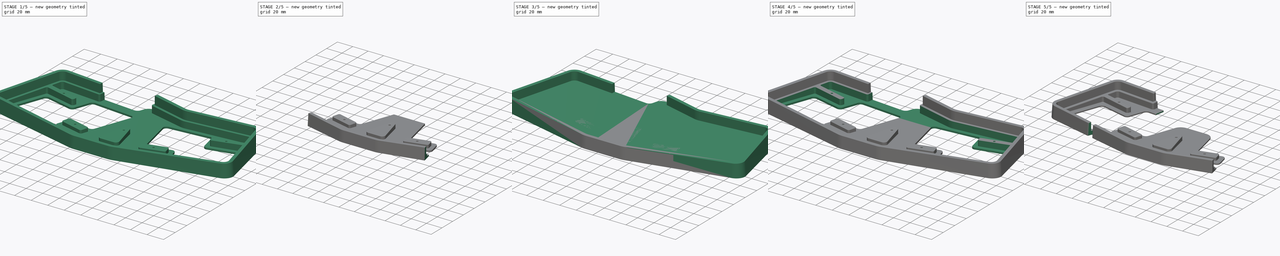
[diagram: build sequence overview — one tinted view per stage of 5, left to right]
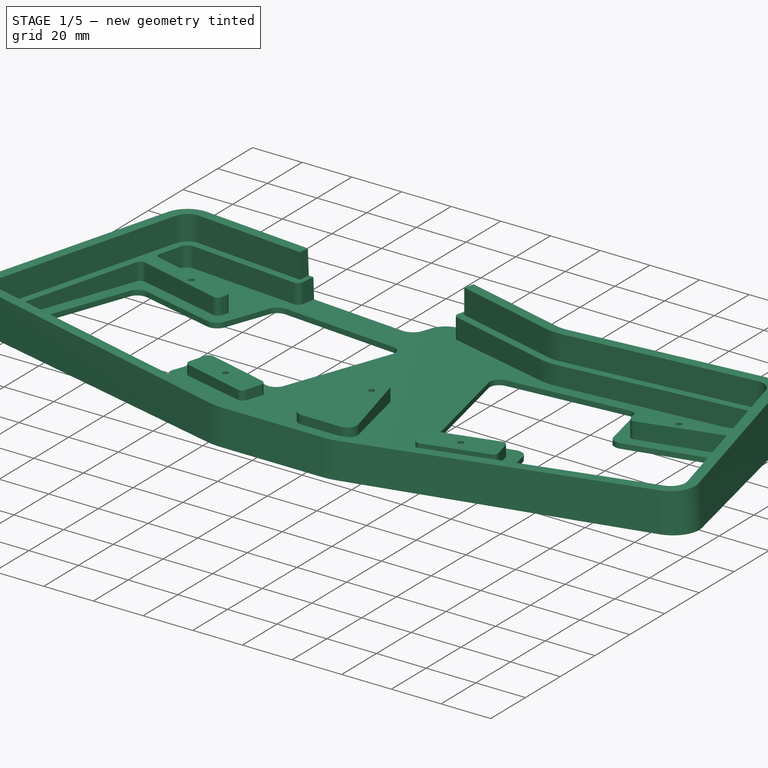
[diagram: stage 1 of 5 — iso view after this stage's code; geometry added in this stage tinted green]
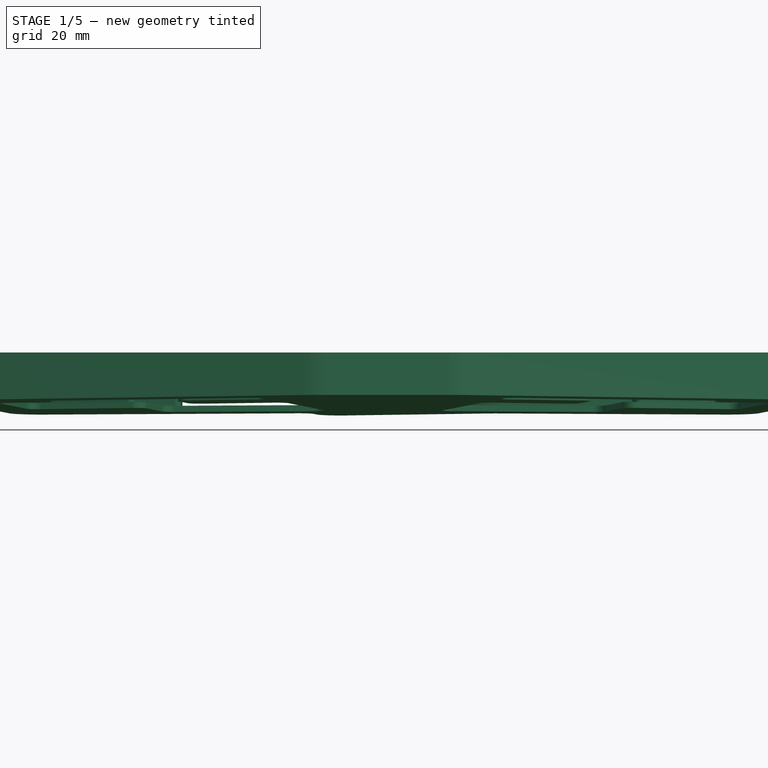
[diagram: stage 1 of 5 — front view after this stage's code; geometry added in this stage tinted green]
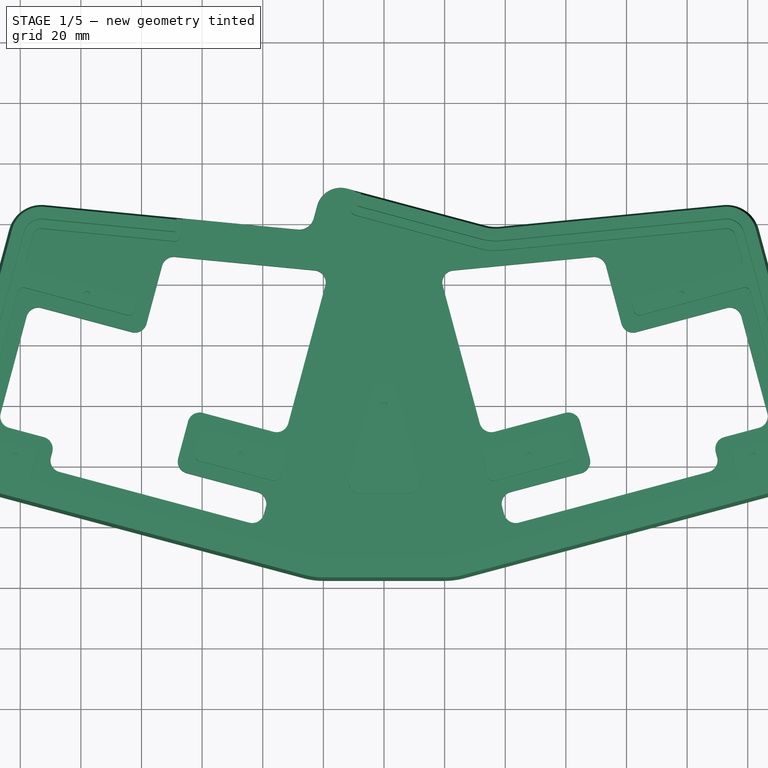
[diagram: stage 1 of 5 — top view after this stage's code; geometry added in this stage tinted green]
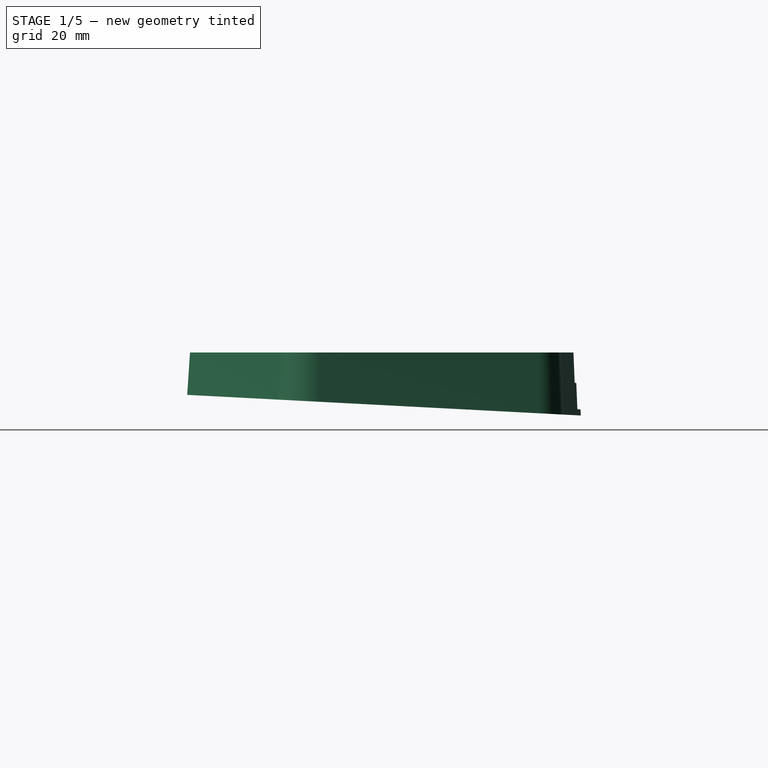
[diagram: stage 1 of 5 — right view after this stage's code; geometry added in this stage tinted green]
FCSTD DOCUMENT  (FreeCAD 0.20R)
Label: case.v2
License: All rights reserved
LicenseURL: http://en.wikipedia.org/wiki/All_rights_reserved
objects: Sketcher::SketchObject×14, PartDesign::Pocket×8, PartDesign::Fillet×4, PartDesign::AdditiveLoft×2, PartDesign::Hole×2, PartDesign::Chamfer×2, PartDesign::Body×2
note: 52 computed .brp shape members not serialized (recipe doc carries the construction recipe); baked Part::Feature solids carry a one-line shape summary decoded from their .brp

FEATURE [PartDesign::Body] Body  label="ext"
  Group = -> [Sketch,Sketch001,AdditiveLoft,Sketch002,Pocket,Sketch003,Pocket001,Sketch004,Pocket002,Sketch005,Hole,Chamfer,Sketch006,Pocket003,Fillet,Fillet001]
  Origin = -> Origin
  Tip = -> Fillet001
FEATURE [Sketcher::SketchObject] Sketch007
  AttachmentOffset = pos=(0,0,17) rot=(0,0,1;0rad)
  FullyConstrained = false
  MapMode = 5
  Placement = pos=(0,0,17) rot=(0,0,1;0rad)
  Support = -> [XY_Plane001]
  sketch-geometry (18):
    g0: LineSegment StartX=-12.5038 StartY=70.9501 StartZ=0 EndX=32.9998 EndY=58.7574 EndZ=0
    g1: ArcOfCircle CenterX=-14.3155 CenterY=64.1886 CenterZ=0 NormalX=0 NormalY=0 NormalZ=1 AngleXU=0 Radius=7 StartAngle=1.309 EndAngle=2.87979
    g2: ArcOfCircle CenterX=-113.019 CenterY=55.5108 CenterZ=0 NormalX=0 NormalY=0 NormalZ=1 AngleXU=0 Radius=10 StartAngle=1.47415 EndAngle=2.87979
    g3: LineSegment StartX=-122.678 StartY=58.099 StartZ=0 EndX=-142.157 EndY=-14.5988 EndZ=0
    g4: ArcOfCircle CenterX=-132.498 CenterY=-17.187 CenterZ=0 NormalX=0 NormalY=0 NormalZ=1 AngleXU=0 Radius=10 StartAngle=2.87979 EndAngle=4.45059
    g5: LineSegment StartX=-135.086 StartY=-26.8463 StartZ=0 EndX=-26.3143 EndY=-55.9917 EndZ=0
    g6: ArcOfCircle CenterX=-19.8438 CenterY=-31.8435 CenterZ=0 NormalX=0 NormalY=0 NormalZ=1 AngleXU=0 Radius=25 StartAngle=4.45059 EndAngle=4.71239
    g7: LineSegment StartX=-19.8438 StartY=-56.8435 StartZ=0 EndX=19.8438 EndY=-56.8435 EndZ=0
    g8: ArcOfCircle CenterX=19.8438 CenterY=-31.8435 CenterZ=0 NormalX=0 NormalY=0 NormalZ=1 AngleXU=0 Radius=25 StartAngle=4.71239 EndAngle=4.97419
    g9: LineSegment StartX=135.086 StartY=-26.8463 StartZ=0 EndX=26.3143 EndY=-55.9917 EndZ=0
    g10: ArcOfCircle CenterX=132.498 CenterY=-17.187 CenterZ=0 NormalX=0 NormalY=0 NormalZ=1 AngleXU=0 Radius=10 StartAngle=4.97419 EndAngle=6.54498
    g11: LineSegment StartX=122.678 StartY=58.099 StartZ=0 EndX=142.157 EndY=-14.5988 EndZ=0
    g12: ArcOfCircle CenterX=113.019 CenterY=55.5108 CenterZ=0 NormalX=0 NormalY=0 NormalZ=1 AngleXU=0 Radius=10 StartAngle=0.261799 EndAngle=1.66745
    g13: LineSegment StartX=38.3296 StartY=58.3163 StartZ=0 EndX=112.054 EndY=65.4641 EndZ=0
    g14: ArcOfCircle CenterX=36.8821 CenterY=73.2463 CenterZ=0 NormalX=0 NormalY=0 NormalZ=1 AngleXU=0 Radius=15 StartAngle=4.45059 EndAngle=4.80904
    g15: LineSegment StartX=-27.7365 StartY=57.2893 StartZ=0 EndX=-112.054 EndY=65.4641 EndZ=0
    g16: LineSegment StartX=-22.4244 StartY=60.9719 StartZ=0 EndX=-21.077 EndY=66.0003 EndZ=0
    g17: ArcOfCircle CenterX=-27.254 CenterY=62.266 CenterZ=0 NormalX=0 NormalY=0 NormalZ=1 AngleXU=0 Radius=5 StartAngle=4.61574 EndAngle=6.02139
  constraints (18):
    c: Coincident(g3,g4)
    c: Coincident(g4,g5)
    c: Coincident(g2,g3)
    c: Coincident(g2,g15)
    c: Coincident(g15,g17)
    c: Coincident(g5,g6)
    c: Coincident(g16,g17)
    c: Coincident(g1,g16)
    c: Coincident(g6,g7)
    c: Coincident(g0,g1)
    c: Coincident(g7,g8)
    c: Coincident(g8,g9)
    c: Coincident(g0,g14)
    c: Coincident(g13,g14)
    c: Coincident(g12,g13)
    c: Coincident(g11,g12)
    c: Coincident(g9,g10)
    c: Coincident(g10,g11)
FEATURE [Sketcher::SketchObject] Sketch008
  AttachmentOffset = pos=(0,0,0) rot=(1,0,0;-0.05236rad)
  FullyConstrained = false
  MapMode = 5
  Placement = pos=(0,0,0) rot=(1,0,0;6.23083rad)
  Support = -> [XY_Plane001]
  sketch-geometry (18):
    g0: LineSegment StartX=38.2331 StartY=59.3117 StartZ=0 EndX=111.957 EndY=66.4594 EndZ=0
    g1: ArcOfCircle CenterX=113.019 CenterY=55.5108 CenterZ=0 NormalX=0 NormalY=0 NormalZ=1 AngleXU=0 Radius=11 StartAngle=0.261799 EndAngle=1.66745
    g2: LineSegment StartX=123.644 StartY=58.3578 StartZ=0 EndX=143.123 EndY=-14.34 EndZ=0
    g3: ArcOfCircle CenterX=132.498 CenterY=-17.187 CenterZ=0 NormalX=0 NormalY=0 NormalZ=1 AngleXU=0 Radius=11 StartAngle=4.97419 EndAngle=6.54498
    g4: LineSegment StartX=135.345 StartY=-27.8122 StartZ=0 EndX=26.5731 EndY=-56.9576 EndZ=0
    g5: LineSegment StartX=-19.8438 StartY=-57.8435 StartZ=0 EndX=19.8438 EndY=-57.8435 EndZ=0
    g6: ArcOfCircle CenterX=19.8438 CenterY=-31.8435 CenterZ=0 NormalX=0 NormalY=0 NormalZ=1 AngleXU=0 Radius=26 StartAngle=4.71239 EndAngle=4.97419
    g7: LineSegment StartX=-135.345 StartY=-27.8122 StartZ=0 EndX=-26.5731 EndY=-56.9576 EndZ=0
    g8: ArcOfCircle CenterX=-19.8438 CenterY=-31.8435 CenterZ=0 NormalX=0 NormalY=0 NormalZ=1 AngleXU=0 Radius=26 StartAngle=4.45059 EndAngle=4.71239
    g9: ArcOfCircle CenterX=-132.498 CenterY=-17.187 CenterZ=0 NormalX=0 NormalY=0 NormalZ=1 AngleXU=0 Radius=11 StartAngle=2.87979 EndAngle=4.45059
    g10: LineSegment StartX=-123.644 StartY=58.3578 StartZ=0 EndX=-143.123 EndY=-14.34 EndZ=0
    g11: ArcOfCircle CenterX=-113.019 CenterY=55.5108 CenterZ=0 NormalX=0 NormalY=0 NormalZ=1 AngleXU=0 Radius=11 StartAngle=1.47415 EndAngle=2.87979
    g12: ArcOfCircle CenterX=-14.3155 CenterY=64.1886 CenterZ=0 NormalX=0 NormalY=0 NormalZ=1 AngleXU=0 Radius=8 StartAngle=1.309 EndAngle=2.87979
    g13: LineSegment StartX=-12.245 StartY=71.916 StartZ=0 EndX=33.2586 EndY=59.7234 EndZ=0
    g14: ArcOfCircle CenterX=36.8821 CenterY=73.2463 CenterZ=0 NormalX=0 NormalY=0 NormalZ=1 AngleXU=0 Radius=14 StartAngle=4.45059 EndAngle=4.80904
    g15: LineSegment StartX=-28.4832 StartY=58.3664 StartZ=0 EndX=-111.957 EndY=66.4594 EndZ=0
    g16: LineSegment StartX=-23.171 StartY=62.0489 StartZ=0 EndX=-22.0429 EndY=66.2591 EndZ=0
    g17: ArcOfCircle CenterX=-28.0007 CenterY=63.343 CenterZ=0 NormalX=0 NormalY=0 NormalZ=1 AngleXU=0 Radius=5 StartAngle=4.61574 EndAngle=6.02139
  constraints (18):
    c: Coincident(g9,g10)
    c: Coincident(g7,g9)
    c: Coincident(g10,g11)
    c: Coincident(g11,g15)
    c: Coincident(g15,g17)
    c: Coincident(g7,g8)
    c: Coincident(g16,g17)
    c: Coincident(g12,g16)
    c: Coincident(g5,g8)
    c: Coincident(g12,g13)
    c: Coincident(g5,g6)
    c: Coincident(g4,g6)
    c: Coincident(g13,g14)
    c: Coincident(g0,g14)
    c: Coincident(g0,g1)
    c: Coincident(g1,g2)
    c: Coincident(g3,g4)
    c: Coincident(g2,g3)
FEATURE [PartDesign::AdditiveLoft] AdditiveLoft001
  Closed = true
  Profile = -> Sketch008
  Ruled = true
  Sections = -> [Sketch007]
FEATURE [Sketcher::SketchObject] Sketch009
  FullyConstrained = false
  MapMode = 5
  Placement = pos=(0,0,17) rot=(0,0,1;0rad)
  Support = -> [AdditiveLoft001]
  sketch-geometry (18):
    g0: ArcOfCircle CenterX=36.8821 CenterY=73.2463 CenterZ=0 NormalX=0 NormalY=0 NormalZ=1 AngleXU=0 Radius=19 StartAngle=4.45059 EndAngle=4.80904
    g1: LineSegment StartX=38.7156 StartY=54.335 StartZ=0 EndX=112.44 EndY=61.4828 EndZ=0
    g2: ArcOfCircle CenterX=113.019 CenterY=55.5108 CenterZ=0 NormalX=0 NormalY=0 NormalZ=1 AngleXU=0 Radius=6 StartAngle=0.261799 EndAngle=1.66745
    g3: LineSegment StartX=118.814 StartY=57.0637 StartZ=0 EndX=138.294 EndY=-15.6341 EndZ=0
    g4: ArcOfCircle CenterX=132.498 CenterY=-17.187 CenterZ=0 NormalX=0 NormalY=0 NormalZ=1 AngleXU=0 Radius=6 StartAngle=4.97419 EndAngle=6.54498
    g5: LineSegment StartX=134.051 StartY=-22.9826 StartZ=0 EndX=25.279 EndY=-52.128 EndZ=0
    g6: ArcOfCircle CenterX=19.8438 CenterY=-31.8435 CenterZ=0 NormalX=0 NormalY=0 NormalZ=1 AngleXU=0 Radius=21 StartAngle=4.71239 EndAngle=4.97419
    g7: LineSegment StartX=-19.8438 StartY=-52.8435 StartZ=0 EndX=19.8438 EndY=-52.8435 EndZ=0
    g8: ArcOfCircle CenterX=-19.8438 CenterY=-31.8435 CenterZ=0 NormalX=0 NormalY=0 NormalZ=1 AngleXU=0 Radius=21 StartAngle=4.45059 EndAngle=4.71239
    g9: LineSegment StartX=-134.051 StartY=-22.9826 StartZ=0 EndX=-25.279 EndY=-52.128 EndZ=0
    g10: ArcOfCircle CenterX=-132.498 CenterY=-17.187 CenterZ=0 NormalX=0 NormalY=0 NormalZ=1 AngleXU=0 Radius=6 StartAngle=2.87979 EndAngle=4.45059
    g11: LineSegment StartX=-118.814 StartY=57.0637 StartZ=0 EndX=-138.294 EndY=-15.6341 EndZ=0
    g12: ArcOfCircle CenterX=-113.019 CenterY=55.5108 CenterZ=0 NormalX=0 NormalY=0 NormalZ=1 AngleXU=0 Radius=6 StartAngle=1.47415 EndAngle=2.87979
    g13: LineSegment StartX=-66.9639 StartY=77.4447 StartZ=0 EndX=-68.9205 EndY=57.2635 EndZ=0
    g14: LineSegment StartX=-112.44 StartY=61.4828 StartZ=0 EndX=-68.9205 EndY=57.2635 EndZ=0
    g15: LineSegment StartX=-66.9639 StartY=77.4447 StartZ=0 EndX=-5.58717 EndY=77.4447 EndZ=0
    g16: LineSegment StartX=-8.70942 StartY=65.7923 StartZ=0 EndX=-5.58717 EndY=77.4447 EndZ=0
    g17: LineSegment StartX=-8.70942 StartY=65.7923 StartZ=0 EndX=31.9645 EndY=54.8937 EndZ=0
  constraints (18):
    c: Coincident(g10,g11)
    c: Coincident(g9,g10)
    c: Coincident(g11,g12)
    c: Coincident(g12,g14)
    c: Coincident(g13,g14)
    c: Coincident(g13,g15)
    c: Coincident(g8,g9)
    c: Coincident(g7,g8)
    c: Coincident(g16,g17)
    c: Coincident(g15,g16)
    c: Coincident(g6,g7)
    c: Coincident(g5,g6)
    c: Coincident(g0,g17)
    c: Coincident(g0,g1)
    c: Coincident(g1,g2)
    c: Coincident(g2,g3)
    c: Coincident(g4,g5)
    c: Coincident(g3,g4)
FEATURE [PartDesign::Pocket] Pocket004
  BaseFeature = -> AdditiveLoft001
  Direction = (0,0,-1)
  Length = 10
  Length2 = 5
  Profile = -> Sketch009
  ReferenceAxis = -> Sketch009 [N_Axis]
  Type = 0
FEATURE [Sketcher::SketchObject] Sketch010
  FullyConstrained = false
  MapMode = 5
  Placement = pos=(0,0,7) rot=(0,0,1;0rad)
  Support = -> [Pocket004]
  sketch-geometry (73):
    g0: Circle CenterX=121.71 CenterY=-16.6741 CenterZ=0 NormalX=0 NormalY=0 NormalZ=-1 AngleXU=0 Radius=1.1
    g1: Circle CenterX=47.4001 CenterY=-16.3717 CenterZ=0 NormalX=0 NormalY=0 NormalZ=-1 AngleXU=0 Radius=1.1
    g2: Circle CenterX=98.1026 CenterY=36.658 CenterZ=0 NormalX=0 NormalY=0 NormalZ=-1 AngleXU=0 Radius=1.1
    g3: Circle CenterX=0 CenterY=0 CenterZ=0 NormalX=0 NormalY=0 NormalZ=-1 AngleXU=0 Radius=1.1
    g4: Circle CenterX=-121.71 CenterY=-16.6741 CenterZ=0 NormalX=0 NormalY=0 NormalZ=-1 AngleXU=0 Radius=1.1
    g5: LineSegment StartX=39.0051 StartY=51.349 StartZ=0 EndX=112.729 EndY=58.4968 EndZ=0
    g6: LineSegment StartX=-19.8438 StartY=-49.8435 StartZ=0 EndX=19.8438 EndY=-49.8435 EndZ=0
    g7: ArcOfCircle CenterX=-113.019 CenterY=55.5108 CenterZ=0 NormalX=0 NormalY=0 NormalZ=1 AngleXU=0 Radius=3 StartAngle=1.47415 EndAngle=2.87979
    g8: ArcOfCircle CenterX=-19.8438 CenterY=-31.8435 CenterZ=0 NormalX=0 NormalY=0 NormalZ=1 AngleXU=0 Radius=18 StartAngle=4.45059 EndAngle=4.71239
    g9: ArcOfCircle CenterX=19.8438 CenterY=-31.8435 CenterZ=0 NormalX=0 NormalY=0 NormalZ=1 AngleXU=0 Radius=18 StartAngle=4.71239 EndAngle=4.97419
    g10: ArcOfCircle CenterX=113.019 CenterY=55.5108 CenterZ=0 NormalX=0 NormalY=0 NormalZ=1 AngleXU=0 Radius=3 StartAngle=0.261799 EndAngle=1.66745
    g11: ArcOfCircle CenterX=36.8821 CenterY=73.2463 CenterZ=0 NormalX=0 NormalY=0 NormalZ=1 AngleXU=0 Radius=22 StartAngle=4.45059 EndAngle=4.80904
    g12: LineSegment StartX=-115.127 StartY=-24.9473 StartZ=0 EndX=-24.5026 EndY=-49.2302 EndZ=0
    g13: ArcOfCircle CenterX=-114.61 CenterY=-23.0155 CenterZ=0 NormalX=0 NormalY=0 NormalZ=1 AngleXU=0 Radius=2 StartAngle=2.87979 EndAngle=4.45059
    g14: LineSegment StartX=115.127 StartY=-24.9473 StartZ=0 EndX=24.5026 EndY=-49.2302 EndZ=0
    g15: ArcOfCircle CenterX=114.61 CenterY=-23.0155 CenterZ=0 NormalX=0 NormalY=0 NormalZ=1 AngleXU=0 Radius=2 StartAngle=4.97419 EndAngle=6.54498
    g16: ArcOfCircle CenterX=58.6716 CenterY=-9.94809 CenterZ=0 NormalX=0 NormalY=0 NormalZ=1 AngleXU=0 Radius=2 StartAngle=0.261799 EndAngle=1.8326
    g17: LineSegment StartX=62.3052 StartY=-15.7814 StartZ=0 EndX=60.6034 EndY=-9.43045 EndZ=0
    g18: ArcOfCircle CenterX=60.3733 CenterY=-16.299 CenterZ=0 NormalX=0 NormalY=0 NormalZ=1 AngleXU=0 Radius=2 StartAngle=4.97419 EndAngle=6.54498
    g19: LineSegment StartX=60.8909 StartY=-18.2309 StartZ=0 EndX=36.6462 EndY=-24.7273 EndZ=0
    g20: ArcOfCircle CenterX=36.1286 CenterY=-22.7954 CenterZ=0 NormalX=0 NormalY=0 NormalZ=1 AngleXU=0 Radius=2 StartAngle=3.40339 EndAngle=4.97419
    g21: LineSegment StartX=32.495 StartY=-16.9621 StartZ=0 EndX=34.1967 EndY=-23.313 EndZ=0
    g22: LineSegment StartX=58.1539 StartY=-8.01623 StartZ=0 EndX=33.9092 EndY=-14.5126 EndZ=0
    g23: ArcOfCircle CenterX=34.4268 CenterY=-16.4444 CenterZ=0 NormalX=0 NormalY=0 NormalZ=1 AngleXU=0 Radius=2 StartAngle=1.8326 EndAngle=3.40339
    g24: ArcOfCircle CenterX=83.7831 CenterY=33.8822 CenterZ=0 NormalX=0 NormalY=0 NormalZ=1 AngleXU=0 Radius=2 StartAngle=1.8326 EndAngle=3.40339
    g25: LineSegment StartX=82.3818 StartY=31.3845 StartZ=0 EndX=81.8512 EndY=33.3646 EndZ=0
    g26: ArcOfCircle CenterX=84.3137 CenterY=31.9021 CenterZ=0 NormalX=0 NormalY=0 NormalZ=1 AngleXU=0 Radius=2 StartAngle=3.40339 EndAngle=4.97419
    g27: ArcOfCircle CenterX=-131.19 CenterY=-8.44011 CenterZ=0 NormalX=0 NormalY=0 NormalZ=1 AngleXU=0 Radius=2 StartAngle=2.87979 EndAngle=4.45059
    g28: ArcOfCircle CenterX=131.19 CenterY=-8.44011 CenterZ=0 NormalX=0 NormalY=0 NormalZ=1 AngleXU=0 Radius=2 StartAngle=4.97419 EndAngle=6.54498
    g29: LineSegment StartX=116.542 StartY=-22.4979 StartZ=0 EndX=115.044 EndY=-16.9076 EndZ=0
    g30: LineSegment StartX=116.458 StartY=-14.4581 StartZ=0 EndX=131.707 EndY=-10.372 EndZ=0
    g31: ArcOfCircle CenterX=116.975 CenterY=-16.3899 CenterZ=0 NormalX=0 NormalY=0 NormalZ=1 AngleXU=0 Radius=2 StartAngle=1.8326 EndAngle=3.40339
    g32: LineSegment StartX=-116.542 StartY=-22.4979 StartZ=0 EndX=-115.044 EndY=-16.9076 EndZ=0
    g33: LineSegment StartX=-116.458 StartY=-14.4581 StartZ=0 EndX=-131.707 EndY=-10.372 EndZ=0
    g34: ArcOfCircle CenterX=-116.975 CenterY=-16.3899 CenterZ=0 NormalX=0 NormalY=0 NormalZ=1 AngleXU=0 Radius=2 StartAngle=6.02139 EndAngle=7.59218
    g35: ArcOfCircle CenterX=9e-15 CenterY=3.85454 CenterZ=0 NormalX=0 NormalY=0 NormalZ=1 AngleXU=0 Radius=4 StartAngle=0.261799 EndAngle=2.87979
    g36: LineSegment StartX=3.8637 StartY=4.88982 StartZ=0 EndX=11.5953 EndY=-23.9647 EndZ=0
    g37: ArcOfCircle CenterX=7.73155 CenterY=-25 CenterZ=0 NormalX=0 NormalY=0 NormalZ=1 AngleXU=0 Radius=4 StartAngle=4.71239 EndAngle=6.54498
    g38: LineSegment StartX=-7.73155 StartY=-29 StartZ=0 EndX=7.73155 EndY=-29 EndZ=0
    g39: LineSegment StartX=-3.8637 StartY=4.88982 StartZ=0 EndX=-11.5953 EndY=-23.9647 EndZ=0
    g40: ArcOfCircle CenterX=-7.73155 CenterY=-25 CenterZ=0 NormalX=0 NormalY=0 NormalZ=1 AngleXU=0 Radius=4 StartAngle=2.87979 EndAngle=4.71239
    g41: LineSegment StartX=83.2655 StartY=35.8141 StartZ=0 EndX=116.916 EndY=44.8307 EndZ=0
    g42: LineSegment StartX=115.917 StartY=56.2872 StartZ=0 EndX=118.33 EndY=47.2802 EndZ=0
    g43: ArcOfCircle CenterX=116.398 CenterY=46.7626 CenterZ=0 NormalX=0 NormalY=0 NormalZ=1 AngleXU=0 Radius=2 StartAngle=4.97419 EndAngle=6.54498
    g44: LineSegment StartX=118.482 StartY=38.9868 StartZ=0 EndX=84.8313 EndY=29.9702 EndZ=0
    g45: LineSegment StartX=120.931 StartY=37.5726 StartZ=0 EndX=133.122 EndY=-7.92247 EndZ=0
    g46: ArcOfCircle CenterX=118.999 CenterY=37.055 CenterZ=0 NormalX=0 NormalY=0 NormalZ=1 AngleXU=0 Radius=2 StartAngle=0.261799 EndAngle=1.8326
    g47: Circle CenterX=-47.4001 CenterY=-16.3717 CenterZ=0 NormalX=0 NormalY=0 NormalZ=-1 AngleXU=0 Radius=1.1
    g48: Circle CenterX=-98.1026 CenterY=36.658 CenterZ=0 NormalX=0 NormalY=0 NormalZ=-1 AngleXU=0 Radius=1.1
    g49: ArcOfCircle CenterX=-58.6716 CenterY=-9.94809 CenterZ=0 NormalX=0 NormalY=0 NormalZ=1 AngleXU=0 Radius=2 StartAngle=1.309 EndAngle=2.87979
    g50: LineSegment StartX=-62.3052 StartY=-15.7814 StartZ=0 EndX=-60.6034 EndY=-9.43045 EndZ=0
    g51: ArcOfCircle CenterX=-60.3733 CenterY=-16.299 CenterZ=0 NormalX=0 NormalY=0 NormalZ=1 AngleXU=0 Radius=2 StartAngle=2.87979 EndAngle=4.45059
    g52: LineSegment StartX=-60.8909 StartY=-18.2309 StartZ=0 EndX=-36.6462 EndY=-24.7273 EndZ=0
    g53: ArcOfCircle CenterX=-36.1286 CenterY=-22.7954 CenterZ=0 NormalX=0 NormalY=0 NormalZ=1 AngleXU=0 Radius=2 StartAngle=4.45059 EndAngle=6.02139
    g54: LineSegment StartX=-32.495 StartY=-16.9621 StartZ=0 EndX=-34.1967 EndY=-23.313 EndZ=0
    g55: LineSegment StartX=-58.1539 StartY=-8.01623 StartZ=0 EndX=-33.9092 EndY=-14.5126 EndZ=0
    g56: ArcOfCircle CenterX=-34.4268 CenterY=-16.4444 CenterZ=0 NormalX=0 NormalY=0 NormalZ=1 AngleXU=0 Radius=2 StartAngle=6.02139 EndAngle=7.59218
    g57: ArcOfCircle CenterX=-83.7831 CenterY=33.8822 CenterZ=0 NormalX=0 NormalY=0 NormalZ=1 AngleXU=0 Radius=2 StartAngle=6.02139 EndAngle=7.59218
    g58: LineSegment StartX=-82.3818 StartY=31.3845 StartZ=0 EndX=-81.8512 EndY=33.3646 EndZ=0
    g59: ArcOfCircle CenterX=-84.3137 CenterY=31.9021 CenterZ=0 NormalX=0 NormalY=0 NormalZ=1 AngleXU=0 Radius=2 StartAngle=4.45059 EndAngle=6.02139
    g60: LineSegment StartX=-83.2655 StartY=35.8141 StartZ=0 EndX=-116.916 EndY=44.8307 EndZ=0
    g61: LineSegment StartX=-115.917 StartY=56.2872 StartZ=0 EndX=-118.33 EndY=47.2802 EndZ=0
    g62: ArcOfCircle CenterX=-116.398 CenterY=46.7626 CenterZ=0 NormalX=0 NormalY=0 NormalZ=1 AngleXU=0 Radius=2 StartAngle=2.87979 EndAngle=4.45059
    g63: LineSegment StartX=-118.482 StartY=38.9868 StartZ=0 EndX=-84.8313 EndY=29.9702 EndZ=0
    g64: LineSegment StartX=-120.931 StartY=37.5726 StartZ=0 EndX=-133.122 EndY=-7.92247 EndZ=0
    g65: ArcOfCircle CenterX=-118.999 CenterY=37.055 CenterZ=0 NormalX=0 NormalY=0 NormalZ=1 AngleXU=0 Radius=2 StartAngle=1.309 EndAngle=2.87979
    g66: LineSegment StartX=-65.1484 StartY=75.4447 StartZ=0 EndX=-8.19362 EndY=75.4447 EndZ=0
    g67: LineSegment StartX=-9.48588 StartY=62.8945 StartZ=0 EndX=31.188 EndY=51.996 EndZ=0
    g68: LineSegment StartX=-10.9001 StartY=65.344 StartZ=0 EndX=-8.19362 EndY=75.4447 EndZ=0
    g69: ArcOfCircle CenterX=-8.96824 CenterY=64.8263 CenterZ=0 NormalX=0 NormalY=0 NormalZ=1 AngleXU=0 Radius=2 StartAngle=2.87979 EndAngle=4.45059
    g70: LineSegment StartX=-69.21 StartY=54.2775 StartZ=0 EndX=-112.729 EndY=58.4968 EndZ=0
    g71: LineSegment StartX=-65.1484 StartY=75.4447 StartZ=0 EndX=-67.0264 EndY=56.0751 EndZ=0
    g72: ArcOfCircle CenterX=-69.017 CenterY=56.2681 CenterZ=0 NormalX=0 NormalY=0 NormalZ=1 AngleXU=0 Radius=2 StartAngle=4.61574 EndAngle=6.18653
FEATURE [PartDesign::Pocket] Pocket005
  BaseFeature = -> Pocket004
  Direction = (0,0,-1)
  Length = 0
  Length2 = 5
  Offset = -2
  Profile = -> Sketch010
  ReferenceAxis = -> Sketch010 [N_Axis]
  Type = 3
  UpToFace = -> Pocket004 [Face1]
FEATURE [Sketcher::SketchObject] Sketch011
  FullyConstrained = false
  MapMode = 5
  Placement = pos=(0,0.104528,1.99452) rot=(-1,0,0;0.05236rad)
  Support = -> [Pocket005]
  sketch-geometry (48):
    g0: ArcOfCircle CenterX=-114.05 CenterY=28.4818 CenterZ=0 NormalX=0 NormalY=0 NormalZ=1 AngleXU=0 Radius=4 StartAngle=1.309 EndAngle=2.87979
    g1: LineSegment StartX=-117.913 StartY=29.5171 StartZ=0 EndX=-126.48 EndY=-2.45509 EndZ=0
    g2: ArcOfCircle CenterX=-122.617 CenterY=-3.49036 CenterZ=0 NormalX=0 NormalY=0 NormalZ=1 AngleXU=0 Radius=4 StartAngle=2.87979 EndAngle=4.45059
    g3: LineSegment StartX=-112.266 StartY=-10.4049 StartZ=0 EndX=-123.652 EndY=-7.35407 EndZ=0
    g4: ArcOfCircle CenterX=-113.301 CenterY=-14.2686 CenterZ=0 NormalX=0 NormalY=0 NormalZ=1 AngleXU=0 Radius=4 StartAngle=6.02139 EndAngle=7.59218
    g5: LineSegment StartX=-109.9 StartY=-17.0305 StartZ=0 EndX=-109.438 EndY=-15.3039 EndZ=0
    g6: ArcOfCircle CenterX=-106.036 CenterY=-18.0657 CenterZ=0 NormalX=0 NormalY=0 NormalZ=1 AngleXU=0 Radius=4 StartAngle=2.87979 EndAngle=4.45059
    g7: ArcOfCircle CenterX=-64.0475 CenterY=-18.4204 CenterZ=0 NormalX=0 NormalY=0 NormalZ=1 AngleXU=0 Radius=4 StartAngle=2.87979 EndAngle=4.45059
    g8: ArcOfCircle CenterX=-69.3494 CenterY=45.2488 CenterZ=0 NormalX=0 NormalY=0 NormalZ=1 AngleXU=0 Radius=4 StartAngle=1.47415 EndAngle=2.87979
    g9: LineSegment StartX=-78.3287 StartY=27.1926 StartZ=0 EndX=-73.2131 EndY=46.284 EndZ=0
    g10: LineSegment StartX=-113.014 StartY=32.3455 StartZ=0 EndX=-83.2276 EndY=24.3642 EndZ=0
    g11: ArcOfCircle CenterX=-82.1924 CenterY=28.2279 CenterZ=0 NormalX=0 NormalY=0 NormalZ=1 AngleXU=0 Radius=4 StartAngle=4.45059 EndAngle=6.02139
    g12: LineSegment StartX=-22.8493 StartY=44.7592 StartZ=0 EndX=-68.9634 EndY=49.2301 EndZ=0
    g13: ArcOfCircle CenterX=-23.2353 CenterY=40.7779 CenterZ=0 NormalX=0 NormalY=0 NormalZ=1 AngleXU=0 Radius=4 StartAngle=6.02139 EndAngle=7.75733
    g14: LineSegment StartX=-31.5798 StartY=-5.81926 StartZ=0 EndX=-19.3716 EndY=39.7426 EndZ=0
    g15: ArcOfCircle CenterX=-35.4435 CenterY=-4.78398 CenterZ=0 NormalX=0 NormalY=0 NormalZ=1 AngleXU=0 Radius=4 StartAngle=4.45059 EndAngle=6.02139
    g16: LineSegment StartX=-67.9112 StartY=-17.3851 StartZ=0 EndX=-64.6566 EndY=-5.23858 EndZ=0
    g17: LineSegment StartX=-59.7576 StartY=-2.41015 StartZ=0 EndX=-36.4788 EndY=-8.64769 EndZ=0
    g18: ArcOfCircle CenterX=-60.7929 CenterY=-6.27385 CenterZ=0 NormalX=0 NormalY=0 NormalZ=1 AngleXU=0 Radius=4 StartAngle=1.309 EndAngle=2.87979
    g19: LineSegment StartX=-65.0828 StartY=-22.2841 StartZ=0 EndX=-41.804 EndY=-28.5216 EndZ=0
    g20: ArcOfCircle CenterX=-42.8393 CenterY=-32.3853 CenterZ=0 NormalX=0 NormalY=0 NormalZ=1 AngleXU=0 Radius=4 StartAngle=6.02139 EndAngle=7.59218
    g21: LineSegment StartX=-39.6291 StartY=-35.8596 StartZ=0 EndX=-38.9756 EndY=-33.4206 EndZ=0
    g22: LineSegment StartX=-107.072 StartY=-21.9294 StartZ=0 EndX=-44.5281 EndY=-38.688 EndZ=0
    g23: ArcOfCircle CenterX=-43.4928 CenterY=-34.8243 CenterZ=0 NormalX=0 NormalY=0 NormalZ=1 AngleXU=0 Radius=4 StartAngle=4.45059 EndAngle=6.02139
    g24: ArcOfCircle CenterX=114.05 CenterY=28.4818 CenterZ=0 NormalX=0 NormalY=0 NormalZ=1 AngleXU=0 Radius=4 StartAngle=0.261799 EndAngle=1.8326
    g25: LineSegment StartX=117.913 StartY=29.5171 StartZ=0 EndX=126.48 EndY=-2.45509 EndZ=0
    g26: ArcOfCircle CenterX=122.617 CenterY=-3.49036 CenterZ=0 NormalX=0 NormalY=0 NormalZ=1 AngleXU=0 Radius=4 StartAngle=4.97419 EndAngle=6.54498
    g27: LineSegment StartX=112.266 StartY=-10.4049 StartZ=0 EndX=123.652 EndY=-7.35407 EndZ=0
    g28: ArcOfCircle CenterX=113.301 CenterY=-14.2686 CenterZ=0 NormalX=0 NormalY=0 NormalZ=1 AngleXU=0 Radius=4 StartAngle=1.8326 EndAngle=3.40339
    g29: LineSegment StartX=109.9 StartY=-17.0305 StartZ=0 EndX=109.438 EndY=-15.3039 EndZ=0
    g30: ArcOfCircle CenterX=106.036 CenterY=-18.0657 CenterZ=0 NormalX=0 NormalY=0 NormalZ=1 AngleXU=0 Radius=4 StartAngle=4.97419 EndAngle=6.54498
    g31: ArcOfCircle CenterX=64.0475 CenterY=-18.4204 CenterZ=0 NormalX=0 NormalY=0 NormalZ=1 AngleXU=0 Radius=4 StartAngle=4.97419 EndAngle=6.54498
    g32: ArcOfCircle CenterX=69.3494 CenterY=45.2488 CenterZ=0 NormalX=0 NormalY=0 NormalZ=1 AngleXU=0 Radius=4 StartAngle=0.261799 EndAngle=1.66745
    g33: LineSegment StartX=78.3287 StartY=27.1926 StartZ=0 EndX=73.2131 EndY=46.284 EndZ=0
    g34: LineSegment StartX=113.014 StartY=32.3455 StartZ=0 EndX=83.2276 EndY=24.3642 EndZ=0
    g35: ArcOfCircle CenterX=82.1924 CenterY=28.2279 CenterZ=0 NormalX=0 NormalY=0 NormalZ=1 AngleXU=0 Radius=4 StartAngle=3.40339 EndAngle=4.97419
    g36: LineSegment StartX=22.8493 StartY=44.7592 StartZ=0 EndX=68.9634 EndY=49.2301 EndZ=0
    g37: ArcOfCircle CenterX=23.2353 CenterY=40.7779 CenterZ=0 NormalX=0 NormalY=0 NormalZ=1 AngleXU=0 Radius=4 StartAngle=1.66745 EndAngle=3.40339
    g38: LineSegment StartX=31.5798 StartY=-5.81926 StartZ=0 EndX=19.3716 EndY=39.7426 EndZ=0
    g39: ArcOfCircle CenterX=35.4435 CenterY=-4.78398 CenterZ=0 NormalX=0 NormalY=0 NormalZ=1 AngleXU=0 Radius=4 StartAngle=3.40339 EndAngle=4.97419
    g40: LineSegment StartX=67.9112 StartY=-17.3851 StartZ=0 EndX=64.6566 EndY=-5.23858 EndZ=0
    g41: LineSegment StartX=59.7576 StartY=-2.41015 StartZ=0 EndX=36.4788 EndY=-8.64769 EndZ=0
    g42: ArcOfCircle CenterX=60.7929 CenterY=-6.27385 CenterZ=0 NormalX=0 NormalY=0 NormalZ=1 AngleXU=0 Radius=4 StartAngle=0.261799 EndAngle=1.8326
    g43: LineSegment StartX=65.0828 StartY=-22.2841 StartZ=0 EndX=41.804 EndY=-28.5216 EndZ=0
    g44: ArcOfCircle CenterX=42.8393 CenterY=-32.3853 CenterZ=0 NormalX=0 NormalY=0 NormalZ=1 AngleXU=0 Radius=4 StartAngle=1.8326 EndAngle=3.40339
    g45: LineSegment StartX=39.6291 StartY=-35.8596 StartZ=0 EndX=38.9756 EndY=-33.4206 EndZ=0
    g46: LineSegment StartX=107.072 StartY=-21.9294 StartZ=0 EndX=44.5281 EndY=-38.688 EndZ=0
    g47: ArcOfCircle CenterX=43.4928 CenterY=-34.8243 CenterZ=0 NormalX=0 NormalY=0 NormalZ=1 AngleXU=0 Radius=4 StartAngle=3.40339 EndAngle=4.97419
  constraints (48):
    c: Coincident(g1,g2)
    c: Coincident(g2,g3)
    c: Coincident(g0,g1)
    c: Coincident(g0,g10)
    c: Coincident(g3,g4)
    c: Coincident(g5,g6)
    c: Coincident(g4,g5)
    c: Coincident(g6,g22)
    c: Coincident(g10,g11)
    c: Coincident(g9,g11)
    c: Coincident(g8,g9)
    c: Coincident(g8,g12)
    c: Coincident(g7,g16)
    c: Coincident(g7,g19)
    c: Coincident(g16,g18)
    c: Coincident(g17,g18)
    c: Coincident(g22,g23)
    c: Coincident(g19,g20)
    c: Coincident(g21,g23)
    c: Coincident(g20,g21)
    c: Coincident(g15,g17)
    c: Coincident(g14,g15)
    c: Coincident(g12,g13)
    c: Coincident(g13,g14)
    c: Coincident(g37,g38)
    c: Coincident(g36,g37)
    c: Coincident(g38,g39)
    c: Coincident(g39,g41)
    c: Coincident(g44,g45)
    c: Coincident(g45,g47)
    c: Coincident(g43,g44)
    c: Coincident(g46,g47)
    c: Coincident(g41,g42)
    c: Coincident(g40,g42)
    c: Coincident(g31,g43)
    c: Coincident(g31,g40)
    c: Coincident(g32,g36)
    c: Coincident(g32,g33)
    c: Coincident(g33,g35)
    c: Coincident(g34,g35)
    c: Coincident(g30,g46)
    c: Coincident(g28,g29)
    c: Coincident(g29,g30)
    c: Coincident(g27,g28)
    c: Coincident(g24,g34)
    c: Coincident(g24,g25)
    c: Coincident(g26,g27)
    c: Coincident(g25,g26)
FEATURE [PartDesign::Pocket] Pocket006
  BaseFeature = -> Pocket005
  Direction = (0,-0.052336,-0.99863)
  Length = 5
  Length2 = 5
  Profile = -> Sketch011
  ReferenceAxis = -> Sketch011 [N_Axis]
  Type = 1
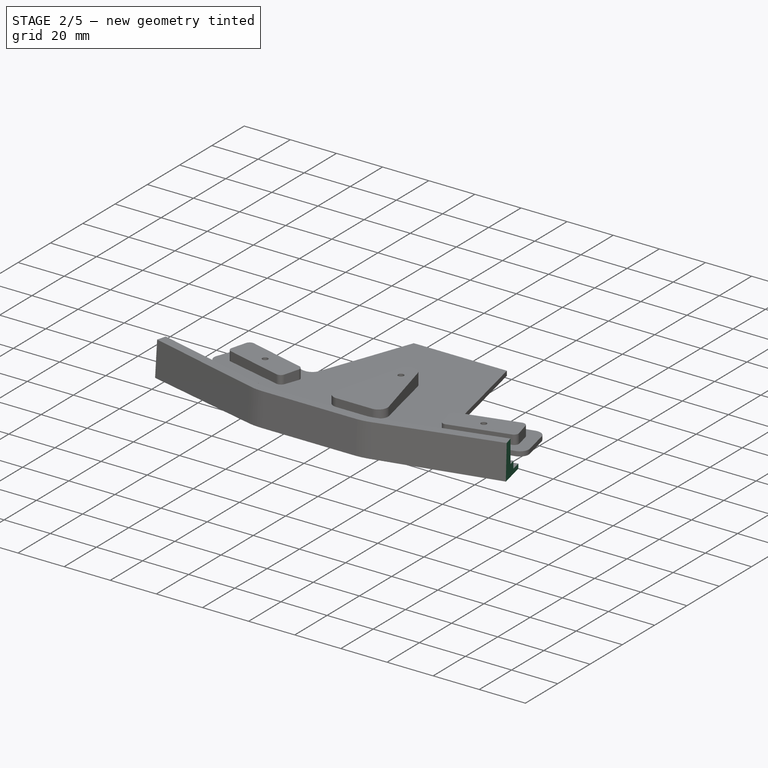
[diagram: stage 2 of 5 — iso view after this stage's code; geometry added in this stage tinted green]
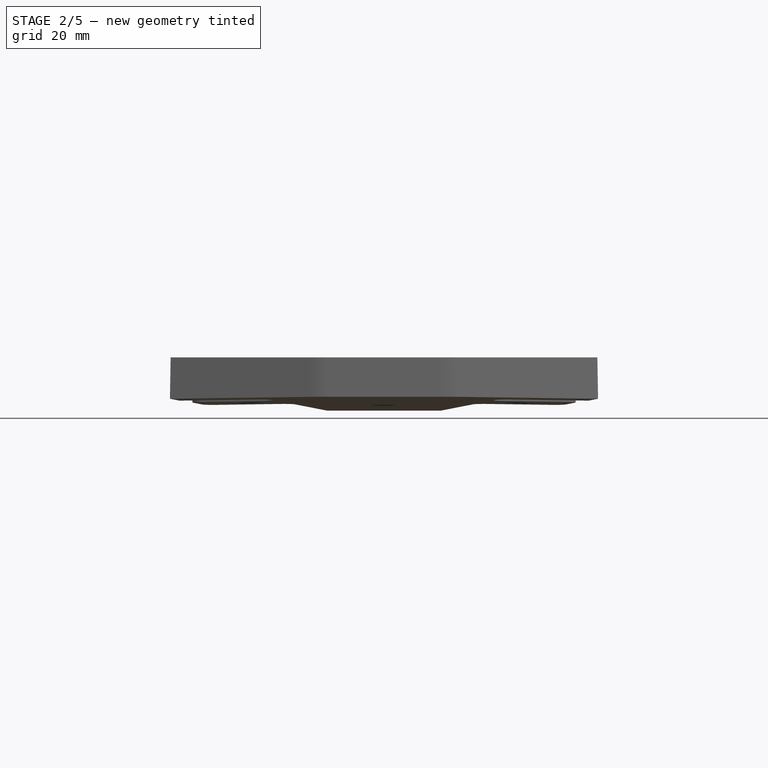
[diagram: stage 2 of 5 — front view after this stage's code; geometry added in this stage tinted green]
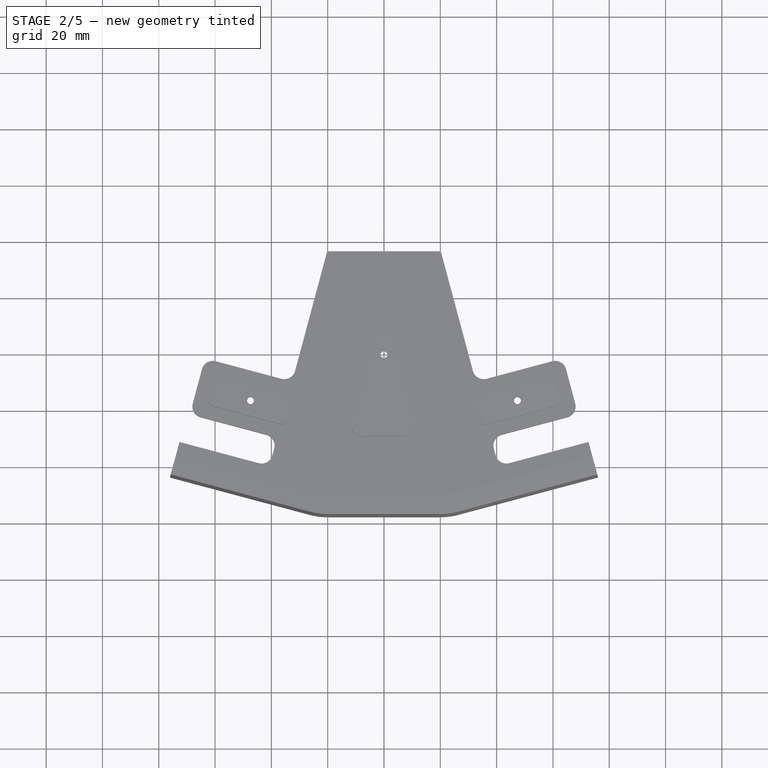
[diagram: stage 2 of 5 — top view after this stage's code; geometry added in this stage tinted green]
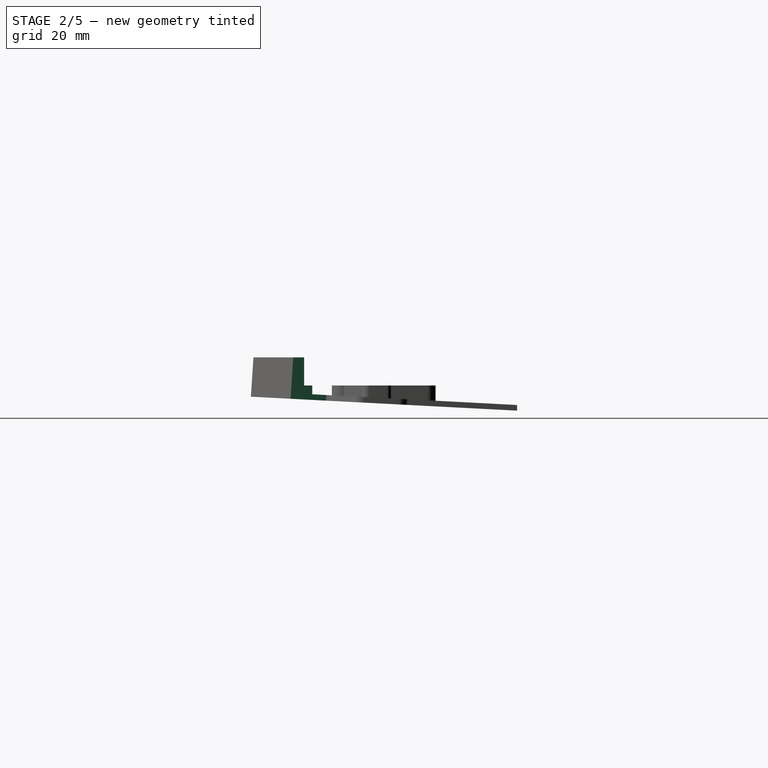
[diagram: stage 2 of 5 — right view after this stage's code; geometry added in this stage tinted green]
FEATURE [Sketcher::SketchObject] Sketch012
  ExternalGeometry = -> [Sketch010]
  FullyConstrained = true
  MapMode = 5
  Placement = pos=(0,0,7) rot=(0,0,1;0rad)
  Support = -> [Pocket004]
  sketch-geometry (7):
    g0: Circle CenterX=98.1026 CenterY=36.658 CenterZ=0 NormalX=0 NormalY=0 NormalZ=1 AngleXU=0 Radius=1.1
    g1: Circle CenterX=121.71 CenterY=-16.6741 CenterZ=0 NormalX=0 NormalY=0 NormalZ=1 AngleXU=0 Radius=1.1
    g2: Circle CenterX=47.4001 CenterY=-16.3717 CenterZ=0 NormalX=0 NormalY=0 NormalZ=1 AngleXU=0 Radius=1.1
    g3: Circle CenterX=0 CenterY=0 CenterZ=0 NormalX=0 NormalY=0 NormalZ=1 AngleXU=0 Radius=1.1
    g4: Circle CenterX=-47.4001 CenterY=-16.3717 CenterZ=0 NormalX=0 NormalY=0 NormalZ=1 AngleXU=0 Radius=1.1
    g5: Circle CenterX=-121.71 CenterY=-16.6741 CenterZ=0 NormalX=0 NormalY=0 NormalZ=1 AngleXU=0 Radius=1.1
    g6: Circle CenterX=-98.1026 CenterY=36.658 CenterZ=0 NormalX=0 NormalY=0 NormalZ=1 AngleXU=0 Radius=1.1
  constraints (14):
    c: Coincident(g0,g-3)
    c: Coincident(g1,g-4)
    c: Coincident(g2,g-5)
    c: Coincident(g3,g-6)
    c: Coincident(g4,g-7)
    c: Coincident(g5,g-9)
    c: Coincident(g6,g-8)
    c: Equal(g1,g0)
    c: Equal(g0,g2)
    c: Equal(g2,g3)
    c: Equal(g3,g4)
    c: Equal(g4,g5)
    c: Equal(g5,g6)
    c: Diameter(g6) = 2.2
FEATURE [PartDesign::Hole] Hole001
  BaseFeature = -> Pocket006
  CustomThreadClearance = 0
  Depth = 637.663
  DepthType = 1
  Diameter = 2.42
  DrillForDepth = false
  DrillPoint = 1
  DrillPointAngle = 118
  HoleCutCountersinkAngle = 90
  HoleCutCustomValues = false
  HoleCutDepth = 0
  HoleCutDiameter = 6.1
  HoleCutType = 0
  ModelThread = false
  Profile = -> Sketch012
  Tapered = false
  TaperedAngle = 90
  ThreadClass = 0
  ThreadDepth = 637.663
  ThreadDepthType = 0
  ThreadDirection = 0
  ThreadFit = 0
  ThreadSize = 7
  ThreadType = 1
  Threaded = false
  UseCustomThreadClearance = false
FEATURE [PartDesign::Chamfer] Chamfer001
  Angle = 45
  Base = -> Hole001 [Edge73,Edge47,Edge46,Edge20,Edge45,Edge19,Edge48]
  BaseFeature = -> Hole001
  ChamferType = 0
  FlipDirection = false
  Size = 3
  Size2 = 1
  SupportTransform = false
  UseAllEdges = false
FEATURE [Sketcher::SketchObject] Sketch013
  ExternalGeometry = -> [Pocket006]
  FullyConstrained = true
  MapMode = 5
  Placement = pos=(0,0,17) rot=(0,0,1;0rad)
  Support = -> [AdditiveLoft001]
  sketch-geometry (8):
    g0: LineSegment StartX=-54.4442 StartY=36.7927 StartZ=0 EndX=-82.3625 EndY=-67.2567 EndZ=0
    g1: LineSegment StartX=-82.3625 StartY=-67.2567 StartZ=0 EndX=-152.362 EndY=-67.2567 EndZ=0
    g2: LineSegment StartX=-152.362 StartY=-67.2567 StartZ=0 EndX=-152.362 EndY=112.743 EndZ=0
    g3: LineSegment StartX=-152.362 StartY=112.743 StartZ=0 EndX=152.362 EndY=112.743 EndZ=0
    g4: LineSegment StartX=152.362 StartY=112.743 StartZ=0 EndX=152.362 EndY=-67.2567 EndZ=0
    g5: LineSegment StartX=152.362 StartY=-67.2567 StartZ=0 EndX=82.3625 EndY=-67.2567 EndZ=0
    g6: LineSegment StartX=82.3625 StartY=-67.2567 StartZ=0 EndX=54.4442 EndY=36.7927 EndZ=0
    g7: LineSegment StartX=54.4442 StartY=36.7927 StartZ=0 EndX=-54.4442 EndY=36.7927 EndZ=0
  constraints (22):
    c: Coincident(g0,g1)
    c: Horizontal(g1)
    c: Coincident(g1,g2)
    c: Vertical(g2)
    c: Coincident(g2,g3)
    c: Horizontal(g3)
    c: Coincident(g3,g4)
    c: Vertical(g4)
    c: Coincident(g4,g5)
    c: Coincident(g5,g6)
    c: Coincident(g6,g7)
    c: Coincident(g7,g0)
    c: Horizontal(g7)
    c: Parallel(g0,g-4)
    c: Distance(g-4,g0) = 1
    c: Parallel(g6,g-3)
    c: Symmetric(g5,g0,g-2)
    c: Symmetric(g4,g1,g-2)
    c: Distance(g5) = 70
    c: Distance(g4) = 180
    c: DistanceY(g5,g-3) = 50
    c: DistanceY(g0,g-5) = 3
FEATURE [PartDesign::Pocket] Pocket007
  BaseFeature = -> Chamfer001
  Direction = (0,0,-1)
  Length = 5
  Length2 = 5
  Profile = -> Sketch013
  ReferenceAxis = -> Sketch013 [N_Axis]
  Type = 1
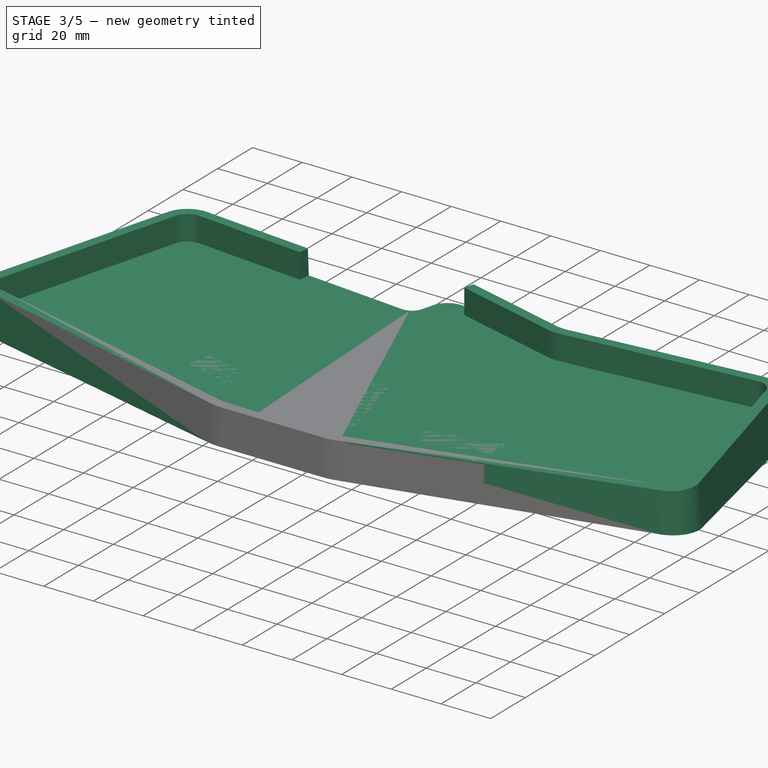
[diagram: stage 3 of 5 — iso view after this stage's code; geometry added in this stage tinted green]
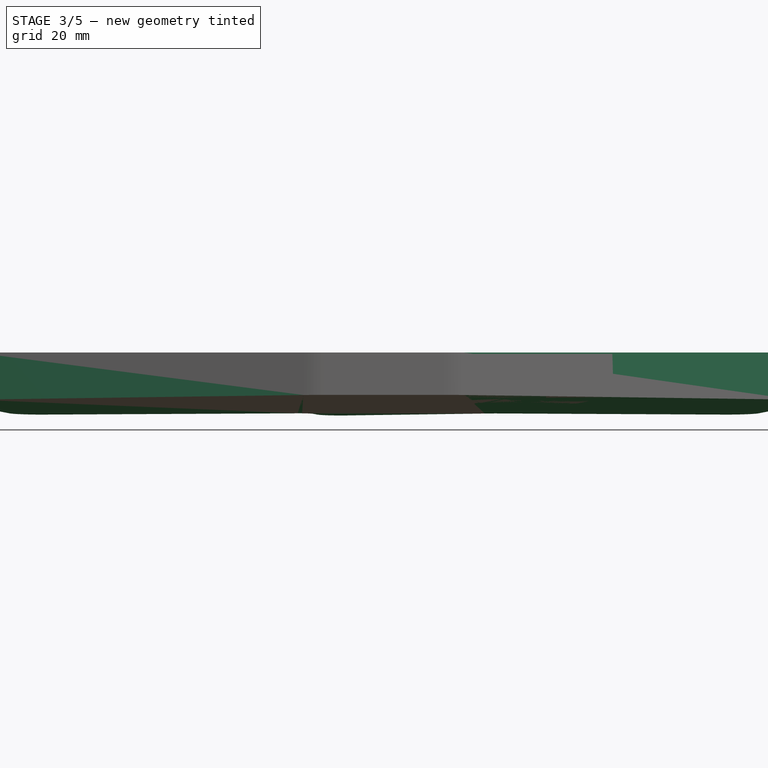
[diagram: stage 3 of 5 — front view after this stage's code; geometry added in this stage tinted green]
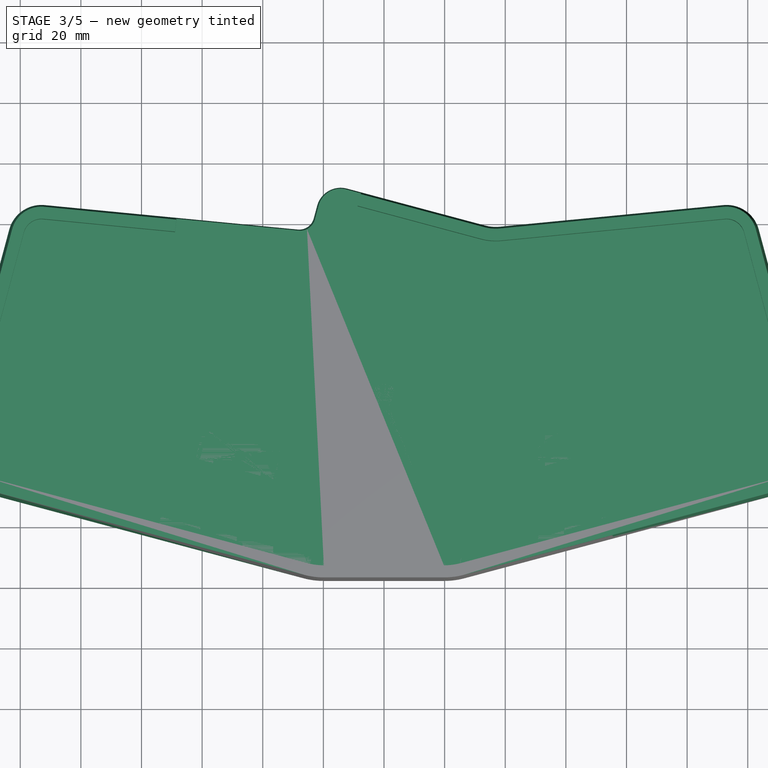
[diagram: stage 3 of 5 — top view after this stage's code; geometry added in this stage tinted green]
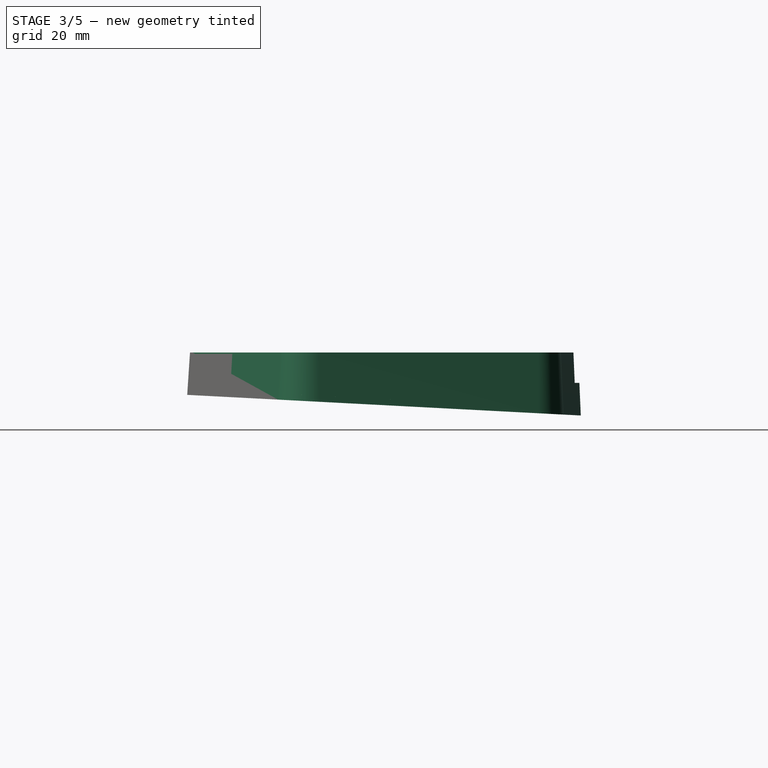
[diagram: stage 3 of 5 — right view after this stage's code; geometry added in this stage tinted green]
FEATURE [Sketcher::SketchObject] Sketch
  AttachmentOffset = pos=(0,0,17) rot=(0,0,1;0rad)
  FullyConstrained = false
  MapMode = 5
  Placement = pos=(0,0,17) rot=(0,0,1;0rad)
  Support = -> [XY_Plane]
  sketch-geometry (18):
    g0: LineSegment StartX=-12.5038 StartY=70.9501 StartZ=0 EndX=32.9998 EndY=58.7574 EndZ=0
    g1: ArcOfCircle CenterX=-14.3155 CenterY=64.1886 CenterZ=0 NormalX=0 NormalY=0 NormalZ=1 AngleXU=0 Radius=7 StartAngle=1.309 EndAngle=2.87979
    g2: ArcOfCircle CenterX=-113.019 CenterY=55.5108 CenterZ=0 NormalX=0 NormalY=0 NormalZ=1 AngleXU=0 Radius=10 StartAngle=1.47415 EndAngle=2.87979
    g3: LineSegment StartX=-122.678 StartY=58.099 StartZ=0 EndX=-142.157 EndY=-14.5988 EndZ=0
    g4: ArcOfCircle CenterX=-132.498 CenterY=-17.187 CenterZ=0 NormalX=0 NormalY=0 NormalZ=1 AngleXU=0 Radius=10 StartAngle=2.87979 EndAngle=4.45059
    g5: LineSegment StartX=-135.086 StartY=-26.8463 StartZ=0 EndX=-26.3143 EndY=-55.9917 EndZ=0
    g6: ArcOfCircle CenterX=-19.8438 CenterY=-31.8435 CenterZ=0 NormalX=0 NormalY=0 NormalZ=1 AngleXU=0 Radius=25 StartAngle=4.45059 EndAngle=4.71239
    g7: LineSegment StartX=-19.8438 StartY=-56.8435 StartZ=0 EndX=19.8438 EndY=-56.8435 EndZ=0
    g8: ArcOfCircle CenterX=19.8438 CenterY=-31.8435 CenterZ=0 NormalX=0 NormalY=0 NormalZ=1 AngleXU=0 Radius=25 StartAngle=4.71239 EndAngle=4.97419
    g9: LineSegment StartX=135.086 StartY=-26.8463 StartZ=0 EndX=26.3143 EndY=-55.9917 EndZ=0
    g10: ArcOfCircle CenterX=132.498 CenterY=-17.187 CenterZ=0 NormalX=0 NormalY=0 NormalZ=1 AngleXU=0 Radius=10 StartAngle=4.97419 EndAngle=6.54498
    g11: LineSegment StartX=122.678 StartY=58.099 StartZ=0 EndX=142.157 EndY=-14.5988 EndZ=0
    g12: ArcOfCircle CenterX=113.019 CenterY=55.5108 CenterZ=0 NormalX=0 NormalY=0 NormalZ=1 AngleXU=0 Radius=10 StartAngle=0.261799 EndAngle=1.66745
    g13: LineSegment StartX=38.3296 StartY=58.3163 StartZ=0 EndX=112.054 EndY=65.4641 EndZ=0
    g14: ArcOfCircle CenterX=36.8821 CenterY=73.2463 CenterZ=0 NormalX=0 NormalY=0 NormalZ=1 AngleXU=0 Radius=15 StartAngle=4.45059 EndAngle=4.80904
    g15: LineSegment StartX=-27.7365 StartY=57.2893 StartZ=0 EndX=-112.054 EndY=65.4641 EndZ=0
    g16: LineSegment StartX=-22.4244 StartY=60.9719 StartZ=0 EndX=-21.077 EndY=66.0003 EndZ=0
    g17: ArcOfCircle CenterX=-27.254 CenterY=62.266 CenterZ=0 NormalX=0 NormalY=0 NormalZ=1 AngleXU=0 Radius=5 StartAngle=4.61574 EndAngle=6.02139
  constraints (18):
    c: Coincident(g3,g4)
    c: Coincident(g4,g5)
    c: Coincident(g2,g3)
    c: Coincident(g2,g15)
    c: Coincident(g15,g17)
    c: Coincident(g5,g6)
    c: Coincident(g16,g17)
    c: Coincident(g1,g16)
    c: Coincident(g6,g7)
    c: Coincident(g0,g1)
    c: Coincident(g7,g8)
    c: Coincident(g8,g9)
    c: Coincident(g0,g14)
    c: Coincident(g13,g14)
    c: Coincident(g12,g13)
    c: Coincident(g11,g12)
    c: Coincident(g9,g10)
    c: Coincident(g10,g11)
FEATURE [Sketcher::SketchObject] Sketch001
  AttachmentOffset = pos=(0,0,0) rot=(1,0,0;-0.05236rad)
  FullyConstrained = false
  MapMode = 5
  Placement = pos=(0,0,0) rot=(1,0,0;6.23083rad)
  Support = -> [XY_Plane]
  sketch-geometry (18):
    g0: LineSegment StartX=38.2331 StartY=59.3117 StartZ=0 EndX=111.957 EndY=66.4594 EndZ=0
    g1: ArcOfCircle CenterX=113.019 CenterY=55.5108 CenterZ=0 NormalX=0 NormalY=0 NormalZ=1 AngleXU=0 Radius=11 StartAngle=0.261799 EndAngle=1.66745
    g2: LineSegment StartX=123.644 StartY=58.3578 StartZ=0 EndX=143.123 EndY=-14.34 EndZ=0
    g3: ArcOfCircle CenterX=132.498 CenterY=-17.187 CenterZ=0 NormalX=0 NormalY=0 NormalZ=1 AngleXU=0 Radius=11 StartAngle=4.97419 EndAngle=6.54498
    g4: LineSegment StartX=135.345 StartY=-27.8122 StartZ=0 EndX=26.5731 EndY=-56.9576 EndZ=0
    g5: LineSegment StartX=-19.8438 StartY=-57.8435 StartZ=0 EndX=19.8438 EndY=-57.8435 EndZ=0
    g6: ArcOfCircle CenterX=19.8438 CenterY=-31.8435 CenterZ=0 NormalX=0 NormalY=0 NormalZ=1 AngleXU=0 Radius=26 StartAngle=4.71239 EndAngle=4.97419
    g7: LineSegment StartX=-135.345 StartY=-27.8122 StartZ=0 EndX=-26.5731 EndY=-56.9576 EndZ=0
    g8: ArcOfCircle CenterX=-19.8438 CenterY=-31.8435 CenterZ=0 NormalX=0 NormalY=0 NormalZ=1 AngleXU=0 Radius=26 StartAngle=4.45059 EndAngle=4.71239
    g9: ArcOfCircle CenterX=-132.498 CenterY=-17.187 CenterZ=0 NormalX=0 NormalY=0 NormalZ=1 AngleXU=0 Radius=11 StartAngle=2.87979 EndAngle=4.45059
    g10: LineSegment StartX=-123.644 StartY=58.3578 StartZ=0 EndX=-143.123 EndY=-14.34 EndZ=0
    g11: ArcOfCircle CenterX=-113.019 CenterY=55.5108 CenterZ=0 NormalX=0 NormalY=0 NormalZ=1 AngleXU=0 Radius=11 StartAngle=1.47415 EndAngle=2.87979
    g12: ArcOfCircle CenterX=-14.3155 CenterY=64.1886 CenterZ=0 NormalX=0 NormalY=0 NormalZ=1 AngleXU=0 Radius=8 StartAngle=1.309 EndAngle=2.87979
    g13: LineSegment StartX=-12.245 StartY=71.916 StartZ=0 EndX=33.2586 EndY=59.7234 EndZ=0
    g14: ArcOfCircle CenterX=36.8821 CenterY=73.2463 CenterZ=0 NormalX=0 NormalY=0 NormalZ=1 AngleXU=0 Radius=14 StartAngle=4.45059 EndAngle=4.80904
    g15: LineSegment StartX=-28.4832 StartY=58.3664 StartZ=0 EndX=-111.957 EndY=66.4594 EndZ=0
    g16: LineSegment StartX=-23.171 StartY=62.0489 StartZ=0 EndX=-22.0429 EndY=66.2591 EndZ=0
    g17: ArcOfCircle CenterX=-28.0007 CenterY=63.343 CenterZ=0 NormalX=0 NormalY=0 NormalZ=1 AngleXU=0 Radius=5 StartAngle=4.61574 EndAngle=6.02139
  constraints (18):
    c: Coincident(g9,g10)
    c: Coincident(g7,g9)
    c: Coincident(g10,g11)
    c: Coincident(g11,g15)
    c: Coincident(g15,g17)
    c: Coincident(g7,g8)
    c: Coincident(g16,g17)
    c: Coincident(g12,g16)
    c: Coincident(g5,g8)
    c: Coincident(g12,g13)
    c: Coincident(g5,g6)
    c: Coincident(g4,g6)
    c: Coincident(g13,g14)
    c: Coincident(g0,g14)
    c: Coincident(g0,g1)
    c: Coincident(g1,g2)
    c: Coincident(g3,g4)
    c: Coincident(g2,g3)
FEATURE [PartDesign::AdditiveLoft] AdditiveLoft
  Closed = true
  Profile = -> Sketch001
  Ruled = true
  Sections = -> [Sketch]
FEATURE [Sketcher::SketchObject] Sketch002
  FullyConstrained = false
  MapMode = 5
  Placement = pos=(0,0,17) rot=(0,0,1;0rad)
  Support = -> [AdditiveLoft]
  sketch-geometry (18):
    g0: ArcOfCircle CenterX=36.8821 CenterY=73.2463 CenterZ=0 NormalX=0 NormalY=0 NormalZ=1 AngleXU=0 Radius=19 StartAngle=4.45059 EndAngle=4.80904
    g1: LineSegment StartX=38.7156 StartY=54.335 StartZ=0 EndX=112.44 EndY=61.4828 EndZ=0
    g2: ArcOfCircle CenterX=113.019 CenterY=55.5108 CenterZ=0 NormalX=0 NormalY=0 NormalZ=1 AngleXU=0 Radius=6 StartAngle=0.261799 EndAngle=1.66745
    g3: LineSegment StartX=118.814 StartY=57.0637 StartZ=0 EndX=138.294 EndY=-15.6341 EndZ=0
    g4: ArcOfCircle CenterX=132.498 CenterY=-17.187 CenterZ=0 NormalX=0 NormalY=0 NormalZ=1 AngleXU=0 Radius=6 StartAngle=4.97419 EndAngle=6.54498
    g5: LineSegment StartX=134.051 StartY=-22.9826 StartZ=0 EndX=25.279 EndY=-52.128 EndZ=0
    g6: ArcOfCircle CenterX=19.8438 CenterY=-31.8435 CenterZ=0 NormalX=0 NormalY=0 NormalZ=1 AngleXU=0 Radius=21 StartAngle=4.71239 EndAngle=4.97419
    g7: LineSegment StartX=-19.8438 StartY=-52.8435 StartZ=0 EndX=19.8438 EndY=-52.8435 EndZ=0
    g8: ArcOfCircle CenterX=-19.8438 CenterY=-31.8435 CenterZ=0 NormalX=0 NormalY=0 NormalZ=1 AngleXU=0 Radius=21 StartAngle=4.45059 EndAngle=4.71239
    g9: LineSegment StartX=-134.051 StartY=-22.9826 StartZ=0 EndX=-25.279 EndY=-52.128 EndZ=0
    g10: ArcOfCircle CenterX=-132.498 CenterY=-17.187 CenterZ=0 NormalX=0 NormalY=0 NormalZ=1 AngleXU=0 Radius=6 StartAngle=2.87979 EndAngle=4.45059
    g11: LineSegment StartX=-118.814 StartY=57.0637 StartZ=0 EndX=-138.294 EndY=-15.6341 EndZ=0
    g12: ArcOfCircle CenterX=-113.019 CenterY=55.5108 CenterZ=0 NormalX=0 NormalY=0 NormalZ=1 AngleXU=0 Radius=6 StartAngle=1.47415 EndAngle=2.87979
    g13: LineSegment StartX=-66.9639 StartY=77.4447 StartZ=0 EndX=-68.9205 EndY=57.2635 EndZ=0
    g14: LineSegment StartX=-112.44 StartY=61.4828 StartZ=0 EndX=-68.9205 EndY=57.2635 EndZ=0
    g15: LineSegment StartX=-66.9639 StartY=77.4447 StartZ=0 EndX=-5.58717 EndY=77.4447 EndZ=0
    g16: LineSegment StartX=-8.70942 StartY=65.7923 StartZ=0 EndX=-5.58717 EndY=77.4447 EndZ=0
    g17: LineSegment StartX=-8.70942 StartY=65.7923 StartZ=0 EndX=31.9645 EndY=54.8937 EndZ=0
  constraints (18):
    c: Coincident(g10,g11)
    c: Coincident(g9,g10)
    c: Coincident(g11,g12)
    c: Coincident(g12,g14)
    c: Coincident(g13,g14)
    c: Coincident(g13,g15)
    c: Coincident(g8,g9)
    c: Coincident(g7,g8)
    c: Coincident(g16,g17)
    c: Coincident(g15,g16)
    c: Coincident(g6,g7)
    c: Coincident(g5,g6)
    c: Coincident(g0,g17)
    c: Coincident(g0,g1)
    c: Coincident(g1,g2)
    c: Coincident(g2,g3)
    c: Coincident(g4,g5)
    c: Coincident(g3,g4)
FEATURE [PartDesign::Pocket] Pocket
  BaseFeature = -> AdditiveLoft
  Direction = (0,0,-1)
  Length = 10
  Length2 = 5
  Profile = -> Sketch002
  ReferenceAxis = -> Sketch002 [N_Axis]
  Type = 0
FEATURE [PartDesign::Fillet] Fillet002
  Base = -> Pocket007 [Edge72,Edge73]
  BaseFeature = -> Pocket007
  Radius = 10
  SupportTransform = false
  UseAllEdges = false
FEATURE [PartDesign::Fillet] Fillet003
  Base = -> Fillet002 [Face37,Face31,Face38,Face24,Face1,Edge156,Face77,Face75,Face76]
  BaseFeature = -> Fillet002
  Radius = 0.5
  SupportTransform = false
  UseAllEdges = false
FEATURE [PartDesign::Body] Body001  label="int"
  Group = -> [Sketch007,Sketch008,AdditiveLoft001,Sketch009,Pocket004,Sketch010,Pocket005,Sketch011,Pocket006,Sketch012,Hole001,Chamfer001,Sketch013,Pocket007,Fillet002,Fillet003]
  Origin = -> Origin001
  Tip = -> Fillet003
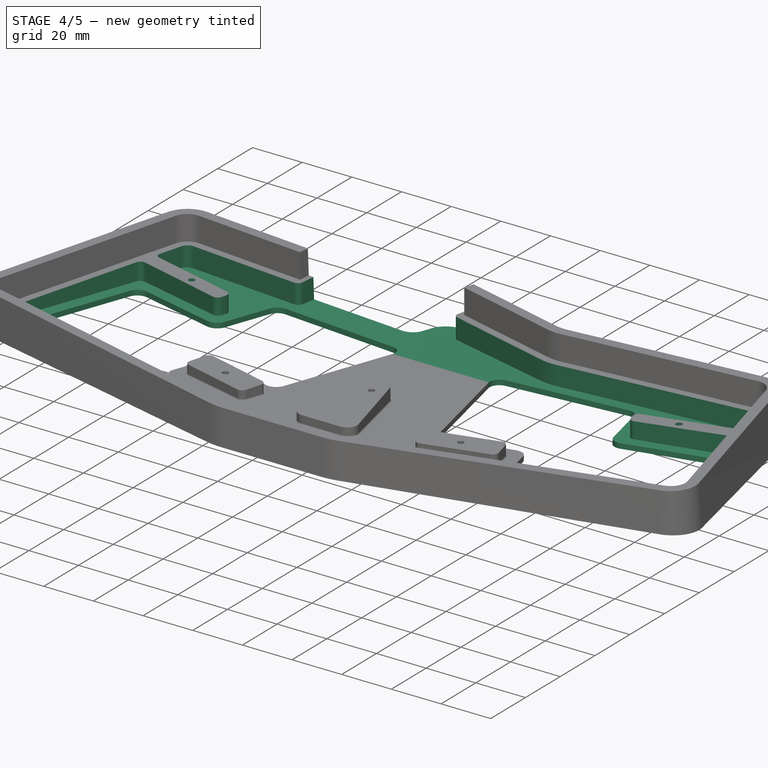
[diagram: stage 4 of 5 — iso view after this stage's code; geometry added in this stage tinted green]
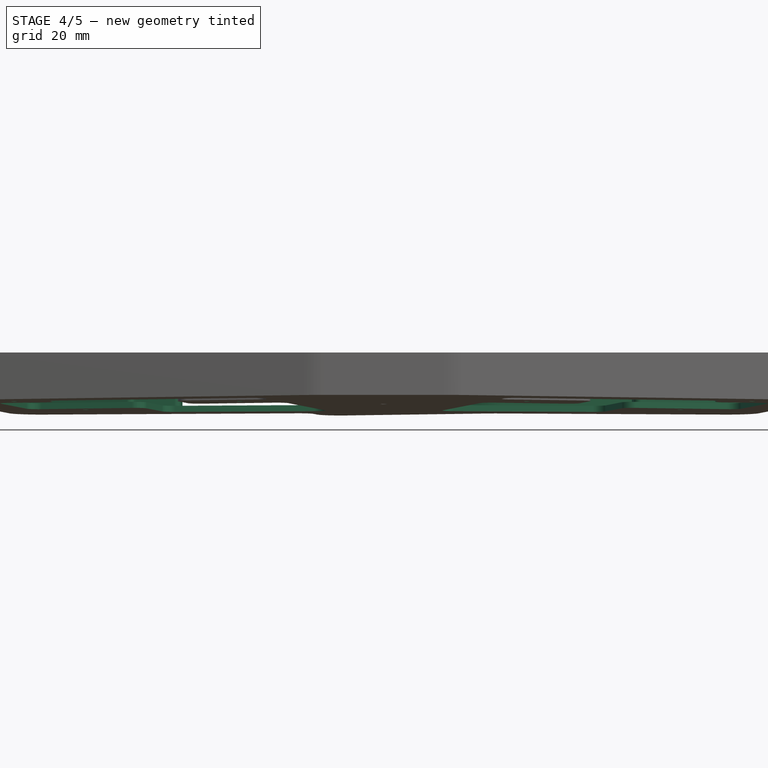
[diagram: stage 4 of 5 — front view after this stage's code; geometry added in this stage tinted green]
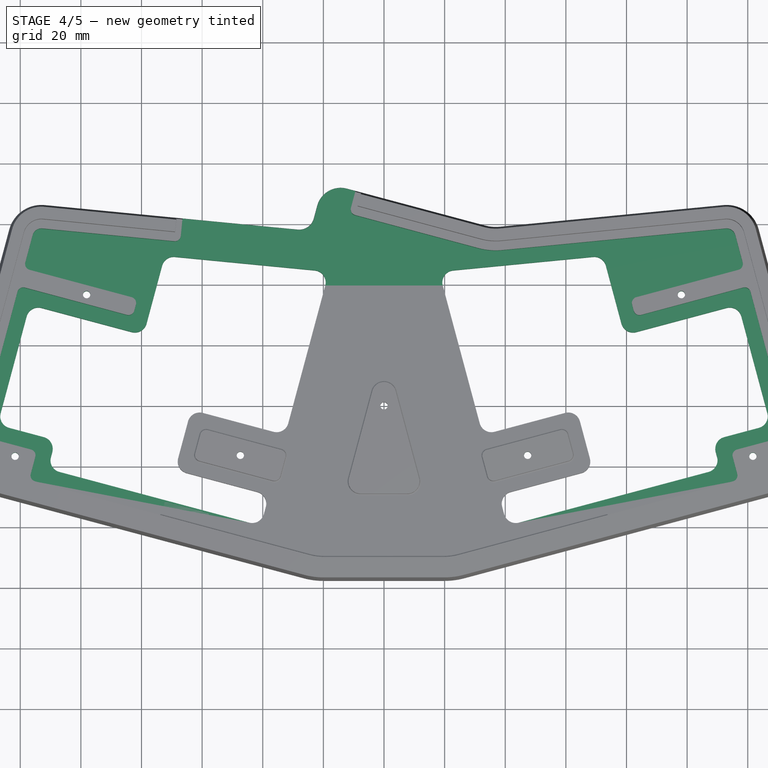
[diagram: stage 4 of 5 — top view after this stage's code; geometry added in this stage tinted green]
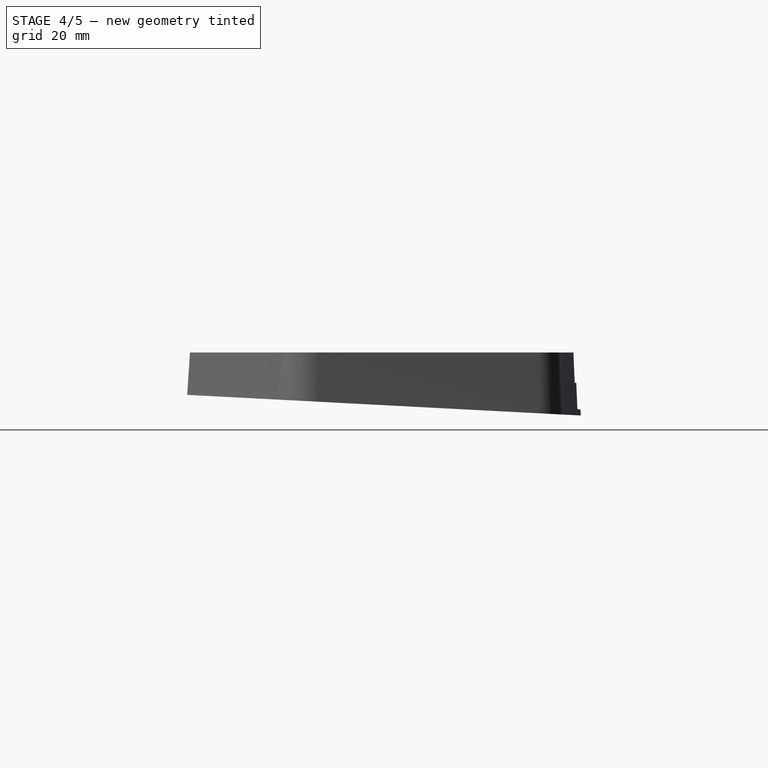
[diagram: stage 4 of 5 — right view after this stage's code; geometry added in this stage tinted green]
FEATURE [Sketcher::SketchObject] Sketch003
  FullyConstrained = false
  MapMode = 5
  Placement = pos=(0,0,7) rot=(0,0,1;0rad)
  Support = -> [Pocket]
  sketch-geometry (73):
    g0: Circle CenterX=121.71 CenterY=-16.6741 CenterZ=0 NormalX=0 NormalY=0 NormalZ=-1 AngleXU=0 Radius=1.1
    g1: Circle CenterX=47.4001 CenterY=-16.3717 CenterZ=0 NormalX=0 NormalY=0 NormalZ=-1 AngleXU=0 Radius=1.1
    g2: Circle CenterX=98.1026 CenterY=36.658 CenterZ=0 NormalX=0 NormalY=0 NormalZ=-1 AngleXU=0 Radius=1.1
    g3: Circle CenterX=0 CenterY=0 CenterZ=0 NormalX=0 NormalY=0 NormalZ=-1 AngleXU=0 Radius=1.1
    g4: Circle CenterX=-121.71 CenterY=-16.6741 CenterZ=0 NormalX=0 NormalY=0 NormalZ=-1 AngleXU=0 Radius=1.1
    g5: LineSegment StartX=39.0051 StartY=51.349 StartZ=0 EndX=112.729 EndY=58.4968 EndZ=0
    g6: LineSegment StartX=-19.8438 StartY=-49.8435 StartZ=0 EndX=19.8438 EndY=-49.8435 EndZ=0
    g7: ArcOfCircle CenterX=-113.019 CenterY=55.5108 CenterZ=0 NormalX=0 NormalY=0 NormalZ=1 AngleXU=0 Radius=3 StartAngle=1.47415 EndAngle=2.87979
    g8: ArcOfCircle CenterX=-19.8438 CenterY=-31.8435 CenterZ=0 NormalX=0 NormalY=0 NormalZ=1 AngleXU=0 Radius=18 StartAngle=4.45059 EndAngle=4.71239
    g9: ArcOfCircle CenterX=19.8438 CenterY=-31.8435 CenterZ=0 NormalX=0 NormalY=0 NormalZ=1 AngleXU=0 Radius=18 StartAngle=4.71239 EndAngle=4.97419
    g10: ArcOfCircle CenterX=113.019 CenterY=55.5108 CenterZ=0 NormalX=0 NormalY=0 NormalZ=1 AngleXU=0 Radius=3 StartAngle=0.261799 EndAngle=1.66745
    g11: ArcOfCircle CenterX=36.8821 CenterY=73.2463 CenterZ=0 NormalX=0 NormalY=0 NormalZ=1 AngleXU=0 Radius=22 StartAngle=4.45059 EndAngle=4.80904
    g12: LineSegment StartX=-115.127 StartY=-24.9473 StartZ=0 EndX=-24.5026 EndY=-49.2302 EndZ=0
    g13: ArcOfCircle CenterX=-114.61 CenterY=-23.0155 CenterZ=0 NormalX=0 NormalY=0 NormalZ=1 AngleXU=0 Radius=2 StartAngle=2.87979 EndAngle=4.45059
    g14: LineSegment StartX=115.127 StartY=-24.9473 StartZ=0 EndX=24.5026 EndY=-49.2302 EndZ=0
    g15: ArcOfCircle CenterX=114.61 CenterY=-23.0155 CenterZ=0 NormalX=0 NormalY=0 NormalZ=1 AngleXU=0 Radius=2 StartAngle=4.97419 EndAngle=6.54498
    g16: ArcOfCircle CenterX=58.6716 CenterY=-9.94809 CenterZ=0 NormalX=0 NormalY=0 NormalZ=1 AngleXU=0 Radius=2 StartAngle=0.261799 EndAngle=1.8326
    g17: LineSegment StartX=62.3052 StartY=-15.7814 StartZ=0 EndX=60.6034 EndY=-9.43045 EndZ=0
    g18: ArcOfCircle CenterX=60.3733 CenterY=-16.299 CenterZ=0 NormalX=0 NormalY=0 NormalZ=1 AngleXU=0 Radius=2 StartAngle=4.97419 EndAngle=6.54498
    g19: LineSegment StartX=60.8909 StartY=-18.2309 StartZ=0 EndX=36.6462 EndY=-24.7273 EndZ=0
    g20: ArcOfCircle CenterX=36.1286 CenterY=-22.7954 CenterZ=0 NormalX=0 NormalY=0 NormalZ=1 AngleXU=0 Radius=2 StartAngle=3.40339 EndAngle=4.97419
    g21: LineSegment StartX=32.495 StartY=-16.9621 StartZ=0 EndX=34.1967 EndY=-23.313 EndZ=0
    g22: LineSegment StartX=58.1539 StartY=-8.01623 StartZ=0 EndX=33.9092 EndY=-14.5126 EndZ=0
    g23: ArcOfCircle CenterX=34.4268 CenterY=-16.4444 CenterZ=0 NormalX=0 NormalY=0 NormalZ=1 AngleXU=0 Radius=2 StartAngle=1.8326 EndAngle=3.40339
    g24: ArcOfCircle CenterX=83.7831 CenterY=33.8822 CenterZ=0 NormalX=0 NormalY=0 NormalZ=1 AngleXU=0 Radius=2 StartAngle=1.8326 EndAngle=3.40339
    g25: LineSegment StartX=82.3818 StartY=31.3845 StartZ=0 EndX=81.8512 EndY=33.3646 EndZ=0
    g26: ArcOfCircle CenterX=84.3137 CenterY=31.9021 CenterZ=0 NormalX=0 NormalY=0 NormalZ=1 AngleXU=0 Radius=2 StartAngle=3.40339 EndAngle=4.97419
    g27: ArcOfCircle CenterX=-131.19 CenterY=-8.44011 CenterZ=0 NormalX=0 NormalY=0 NormalZ=1 AngleXU=0 Radius=2 StartAngle=2.87979 EndAngle=4.45059
    g28: ArcOfCircle CenterX=131.19 CenterY=-8.44011 CenterZ=0 NormalX=0 NormalY=0 NormalZ=1 AngleXU=0 Radius=2 StartAngle=4.97419 EndAngle=6.54498
    g29: LineSegment StartX=116.542 StartY=-22.4979 StartZ=0 EndX=115.044 EndY=-16.9076 EndZ=0
    g30: LineSegment StartX=116.458 StartY=-14.4581 StartZ=0 EndX=131.707 EndY=-10.372 EndZ=0
    g31: ArcOfCircle CenterX=116.975 CenterY=-16.3899 CenterZ=0 NormalX=0 NormalY=0 NormalZ=1 AngleXU=0 Radius=2 StartAngle=1.8326 EndAngle=3.40339
    g32: LineSegment StartX=-116.542 StartY=-22.4979 StartZ=0 EndX=-115.044 EndY=-16.9076 EndZ=0
    g33: LineSegment StartX=-116.458 StartY=-14.4581 StartZ=0 EndX=-131.707 EndY=-10.372 EndZ=0
    g34: ArcOfCircle CenterX=-116.975 CenterY=-16.3899 CenterZ=0 NormalX=0 NormalY=0 NormalZ=1 AngleXU=0 Radius=2 StartAngle=6.02139 EndAngle=7.59218
    g35: ArcOfCircle CenterX=9e-15 CenterY=3.85454 CenterZ=0 NormalX=0 NormalY=0 NormalZ=1 AngleXU=0 Radius=4 StartAngle=0.261799 EndAngle=2.87979
    g36: LineSegment StartX=3.8637 StartY=4.88982 StartZ=0 EndX=11.5953 EndY=-23.9647 EndZ=0
    g37: ArcOfCircle CenterX=7.73155 CenterY=-25 CenterZ=0 NormalX=0 NormalY=0 NormalZ=1 AngleXU=0 Radius=4 StartAngle=4.71239 EndAngle=6.54498
    g38: LineSegment StartX=-7.73155 StartY=-29 StartZ=0 EndX=7.73155 EndY=-29 EndZ=0
    g39: LineSegment StartX=-3.8637 StartY=4.88982 StartZ=0 EndX=-11.5953 EndY=-23.9647 EndZ=0
    g40: ArcOfCircle CenterX=-7.73155 CenterY=-25 CenterZ=0 NormalX=0 NormalY=0 NormalZ=1 AngleXU=0 Radius=4 StartAngle=2.87979 EndAngle=4.71239
    g41: LineSegment StartX=83.2655 StartY=35.8141 StartZ=0 EndX=116.916 EndY=44.8307 EndZ=0
    g42: LineSegment StartX=115.917 StartY=56.2872 StartZ=0 EndX=118.33 EndY=47.2802 EndZ=0
    g43: ArcOfCircle CenterX=116.398 CenterY=46.7626 CenterZ=0 NormalX=0 NormalY=0 NormalZ=1 AngleXU=0 Radius=2 StartAngle=4.97419 EndAngle=6.54498
    g44: LineSegment StartX=118.482 StartY=38.9868 StartZ=0 EndX=84.8313 EndY=29.9702 EndZ=0
    g45: LineSegment StartX=120.931 StartY=37.5726 StartZ=0 EndX=133.122 EndY=-7.92247 EndZ=0
    g46: ArcOfCircle CenterX=118.999 CenterY=37.055 CenterZ=0 NormalX=0 NormalY=0 NormalZ=1 AngleXU=0 Radius=2 StartAngle=0.261799 EndAngle=1.8326
    g47: Circle CenterX=-47.4001 CenterY=-16.3717 CenterZ=0 NormalX=0 NormalY=0 NormalZ=-1 AngleXU=0 Radius=1.1
    g48: Circle CenterX=-98.1026 CenterY=36.658 CenterZ=0 NormalX=0 NormalY=0 NormalZ=-1 AngleXU=0 Radius=1.1
    g49: ArcOfCircle CenterX=-58.6716 CenterY=-9.94809 CenterZ=0 NormalX=0 NormalY=0 NormalZ=1 AngleXU=0 Radius=2 StartAngle=1.309 EndAngle=2.87979
    g50: LineSegment StartX=-62.3052 StartY=-15.7814 StartZ=0 EndX=-60.6034 EndY=-9.43045 EndZ=0
    g51: ArcOfCircle CenterX=-60.3733 CenterY=-16.299 CenterZ=0 NormalX=0 NormalY=0 NormalZ=1 AngleXU=0 Radius=2 StartAngle=2.87979 EndAngle=4.45059
    g52: LineSegment StartX=-60.8909 StartY=-18.2309 StartZ=0 EndX=-36.6462 EndY=-24.7273 EndZ=0
    g53: ArcOfCircle CenterX=-36.1286 CenterY=-22.7954 CenterZ=0 NormalX=0 NormalY=0 NormalZ=1 AngleXU=0 Radius=2 StartAngle=4.45059 EndAngle=6.02139
    g54: LineSegment StartX=-32.495 StartY=-16.9621 StartZ=0 EndX=-34.1967 EndY=-23.313 EndZ=0
    g55: LineSegment StartX=-58.1539 StartY=-8.01623 StartZ=0 EndX=-33.9092 EndY=-14.5126 EndZ=0
    g56: ArcOfCircle CenterX=-34.4268 CenterY=-16.4444 CenterZ=0 NormalX=0 NormalY=0 NormalZ=1 AngleXU=0 Radius=2 StartAngle=6.02139 EndAngle=7.59218
    g57: ArcOfCircle CenterX=-83.7831 CenterY=33.8822 CenterZ=0 NormalX=0 NormalY=0 NormalZ=1 AngleXU=0 Radius=2 StartAngle=6.02139 EndAngle=7.59218
    g58: LineSegment StartX=-82.3818 StartY=31.3845 StartZ=0 EndX=-81.8512 EndY=33.3646 EndZ=0
    g59: ArcOfCircle CenterX=-84.3137 CenterY=31.9021 CenterZ=0 NormalX=0 NormalY=0 NormalZ=1 AngleXU=0 Radius=2 StartAngle=4.45059 EndAngle=6.02139
    g60: LineSegment StartX=-83.2655 StartY=35.8141 StartZ=0 EndX=-116.916 EndY=44.8307 EndZ=0
    g61: LineSegment StartX=-115.917 StartY=56.2872 StartZ=0 EndX=-118.33 EndY=47.2802 EndZ=0
    g62: ArcOfCircle CenterX=-116.398 CenterY=46.7626 CenterZ=0 NormalX=0 NormalY=0 NormalZ=1 AngleXU=0 Radius=2 StartAngle=2.87979 EndAngle=4.45059
    g63: LineSegment StartX=-118.482 StartY=38.9868 StartZ=0 EndX=-84.8313 EndY=29.9702 EndZ=0
    g64: LineSegment StartX=-120.931 StartY=37.5726 StartZ=0 EndX=-133.122 EndY=-7.92247 EndZ=0
    g65: ArcOfCircle CenterX=-118.999 CenterY=37.055 CenterZ=0 NormalX=0 NormalY=0 NormalZ=1 AngleXU=0 Radius=2 StartAngle=1.309 EndAngle=2.87979
    g66: LineSegment StartX=-65.1484 StartY=75.4447 StartZ=0 EndX=-8.19362 EndY=75.4447 EndZ=0
    g67: LineSegment StartX=-9.48588 StartY=62.8945 StartZ=0 EndX=31.188 EndY=51.996 EndZ=0
    g68: LineSegment StartX=-10.9001 StartY=65.344 StartZ=0 EndX=-8.19362 EndY=75.4447 EndZ=0
    g69: ArcOfCircle CenterX=-8.96824 CenterY=64.8263 CenterZ=0 NormalX=0 NormalY=0 NormalZ=1 AngleXU=0 Radius=2 StartAngle=2.87979 EndAngle=4.45059
    g70: LineSegment StartX=-69.21 StartY=54.2775 StartZ=0 EndX=-112.729 EndY=58.4968 EndZ=0
    g71: LineSegment StartX=-65.1484 StartY=75.4447 StartZ=0 EndX=-67.0264 EndY=56.0751 EndZ=0
    g72: ArcOfCircle CenterX=-69.017 CenterY=56.2681 CenterZ=0 NormalX=0 NormalY=0 NormalZ=1 AngleXU=0 Radius=2 StartAngle=4.61574 EndAngle=6.18653
FEATURE [PartDesign::Pocket] Pocket001
  BaseFeature = -> Pocket
  Direction = (0,0,-1)
  Length = 0
  Length2 = 5
  Offset = -2
  Profile = -> Sketch003
  ReferenceAxis = -> Sketch003 [N_Axis]
  Type = 3
  UpToFace = -> Pocket [Face1]
FEATURE [Sketcher::SketchObject] Sketch004
  FullyConstrained = false
  MapMode = 5
  Placement = pos=(0,0.104528,1.99452) rot=(-1,0,0;0.05236rad)
  Support = -> [Pocket001]
  sketch-geometry (48):
    g0: ArcOfCircle CenterX=-114.05 CenterY=28.4818 CenterZ=0 NormalX=0 NormalY=0 NormalZ=1 AngleXU=0 Radius=4 StartAngle=1.309 EndAngle=2.87979
    g1: LineSegment StartX=-117.913 StartY=29.5171 StartZ=0 EndX=-126.48 EndY=-2.45509 EndZ=0
    g2: ArcOfCircle CenterX=-122.617 CenterY=-3.49036 CenterZ=0 NormalX=0 NormalY=0 NormalZ=1 AngleXU=0 Radius=4 StartAngle=2.87979 EndAngle=4.45059
    g3: LineSegment StartX=-112.266 StartY=-10.4049 StartZ=0 EndX=-123.652 EndY=-7.35407 EndZ=0
    g4: ArcOfCircle CenterX=-113.301 CenterY=-14.2686 CenterZ=0 NormalX=0 NormalY=0 NormalZ=1 AngleXU=0 Radius=4 StartAngle=6.02139 EndAngle=7.59218
    g5: LineSegment StartX=-109.9 StartY=-17.0305 StartZ=0 EndX=-109.438 EndY=-15.3039 EndZ=0
    g6: ArcOfCircle CenterX=-106.036 CenterY=-18.0657 CenterZ=0 NormalX=0 NormalY=0 NormalZ=1 AngleXU=0 Radius=4 StartAngle=2.87979 EndAngle=4.45059
    g7: ArcOfCircle CenterX=-64.0475 CenterY=-18.4204 CenterZ=0 NormalX=0 NormalY=0 NormalZ=1 AngleXU=0 Radius=4 StartAngle=2.87979 EndAngle=4.45059
    g8: ArcOfCircle CenterX=-69.3494 CenterY=45.2488 CenterZ=0 NormalX=0 NormalY=0 NormalZ=1 AngleXU=0 Radius=4 StartAngle=1.47415 EndAngle=2.87979
    g9: LineSegment StartX=-78.3287 StartY=27.1926 StartZ=0 EndX=-73.2131 EndY=46.284 EndZ=0
    g10: LineSegment StartX=-113.014 StartY=32.3455 StartZ=0 EndX=-83.2276 EndY=24.3642 EndZ=0
    g11: ArcOfCircle CenterX=-82.1924 CenterY=28.2279 CenterZ=0 NormalX=0 NormalY=0 NormalZ=1 AngleXU=0 Radius=4 StartAngle=4.45059 EndAngle=6.02139
    g12: LineSegment StartX=-22.8493 StartY=44.7592 StartZ=0 EndX=-68.9634 EndY=49.2301 EndZ=0
    g13: ArcOfCircle CenterX=-23.2353 CenterY=40.7779 CenterZ=0 NormalX=0 NormalY=0 NormalZ=1 AngleXU=0 Radius=4 StartAngle=6.02139 EndAngle=7.75733
    g14: LineSegment StartX=-31.5798 StartY=-5.81926 StartZ=0 EndX=-19.3716 EndY=39.7426 EndZ=0
    g15: ArcOfCircle CenterX=-35.4435 CenterY=-4.78398 CenterZ=0 NormalX=0 NormalY=0 NormalZ=1 AngleXU=0 Radius=4 StartAngle=4.45059 EndAngle=6.02139
    g16: LineSegment StartX=-67.9112 StartY=-17.3851 StartZ=0 EndX=-64.6566 EndY=-5.23858 EndZ=0
    g17: LineSegment StartX=-59.7576 StartY=-2.41015 StartZ=0 EndX=-36.4788 EndY=-8.64769 EndZ=0
    g18: ArcOfCircle CenterX=-60.7929 CenterY=-6.27385 CenterZ=0 NormalX=0 NormalY=0 NormalZ=1 AngleXU=0 Radius=4 StartAngle=1.309 EndAngle=2.87979
    g19: LineSegment StartX=-65.0828 StartY=-22.2841 StartZ=0 EndX=-41.804 EndY=-28.5216 EndZ=0
    g20: ArcOfCircle CenterX=-42.8393 CenterY=-32.3853 CenterZ=0 NormalX=0 NormalY=0 NormalZ=1 AngleXU=0 Radius=4 StartAngle=6.02139 EndAngle=7.59218
    g21: LineSegment StartX=-39.6291 StartY=-35.8596 StartZ=0 EndX=-38.9756 EndY=-33.4206 EndZ=0
    g22: LineSegment StartX=-107.072 StartY=-21.9294 StartZ=0 EndX=-44.5281 EndY=-38.688 EndZ=0
    g23: ArcOfCircle CenterX=-43.4928 CenterY=-34.8243 CenterZ=0 NormalX=0 NormalY=0 NormalZ=1 AngleXU=0 Radius=4 StartAngle=4.45059 EndAngle=6.02139
    g24: ArcOfCircle CenterX=114.05 CenterY=28.4818 CenterZ=0 NormalX=0 NormalY=0 NormalZ=1 AngleXU=0 Radius=4 StartAngle=0.261799 EndAngle=1.8326
    g25: LineSegment StartX=117.913 StartY=29.5171 StartZ=0 EndX=126.48 EndY=-2.45509 EndZ=0
    g26: ArcOfCircle CenterX=122.617 CenterY=-3.49036 CenterZ=0 NormalX=0 NormalY=0 NormalZ=1 AngleXU=0 Radius=4 StartAngle=4.97419 EndAngle=6.54498
    g27: LineSegment StartX=112.266 StartY=-10.4049 StartZ=0 EndX=123.652 EndY=-7.35407 EndZ=0
    g28: ArcOfCircle CenterX=113.301 CenterY=-14.2686 CenterZ=0 NormalX=0 NormalY=0 NormalZ=1 AngleXU=0 Radius=4 StartAngle=1.8326 EndAngle=3.40339
    g29: LineSegment StartX=109.9 StartY=-17.0305 StartZ=0 EndX=109.438 EndY=-15.3039 EndZ=0
    g30: ArcOfCircle CenterX=106.036 CenterY=-18.0657 CenterZ=0 NormalX=0 NormalY=0 NormalZ=1 AngleXU=0 Radius=4 StartAngle=4.97419 EndAngle=6.54498
    g31: ArcOfCircle CenterX=64.0475 CenterY=-18.4204 CenterZ=0 NormalX=0 NormalY=0 NormalZ=1 AngleXU=0 Radius=4 StartAngle=4.97419 EndAngle=6.54498
    g32: ArcOfCircle CenterX=69.3494 CenterY=45.2488 CenterZ=0 NormalX=0 NormalY=0 NormalZ=1 AngleXU=0 Radius=4 StartAngle=0.261799 EndAngle=1.66745
    g33: LineSegment StartX=78.3287 StartY=27.1926 StartZ=0 EndX=73.2131 EndY=46.284 EndZ=0
    g34: LineSegment StartX=113.014 StartY=32.3455 StartZ=0 EndX=83.2276 EndY=24.3642 EndZ=0
    g35: ArcOfCircle CenterX=82.1924 CenterY=28.2279 CenterZ=0 NormalX=0 NormalY=0 NormalZ=1 AngleXU=0 Radius=4 StartAngle=3.40339 EndAngle=4.97419
    g36: LineSegment StartX=22.8493 StartY=44.7592 StartZ=0 EndX=68.9634 EndY=49.2301 EndZ=0
    g37: ArcOfCircle CenterX=23.2353 CenterY=40.7779 CenterZ=0 NormalX=0 NormalY=0 NormalZ=1 AngleXU=0 Radius=4 StartAngle=1.66745 EndAngle=3.40339
    g38: LineSegment StartX=31.5798 StartY=-5.81926 StartZ=0 EndX=19.3716 EndY=39.7426 EndZ=0
    g39: ArcOfCircle CenterX=35.4435 CenterY=-4.78398 CenterZ=0 NormalX=0 NormalY=0 NormalZ=1 AngleXU=0 Radius=4 StartAngle=3.40339 EndAngle=4.97419
    g40: LineSegment StartX=67.9112 StartY=-17.3851 StartZ=0 EndX=64.6566 EndY=-5.23858 EndZ=0
    g41: LineSegment StartX=59.7576 StartY=-2.41015 StartZ=0 EndX=36.4788 EndY=-8.64769 EndZ=0
    g42: ArcOfCircle CenterX=60.7929 CenterY=-6.27385 CenterZ=0 NormalX=0 NormalY=0 NormalZ=1 AngleXU=0 Radius=4 StartAngle=0.261799 EndAngle=1.8326
    g43: LineSegment StartX=65.0828 StartY=-22.2841 StartZ=0 EndX=41.804 EndY=-28.5216 EndZ=0
    g44: ArcOfCircle CenterX=42.8393 CenterY=-32.3853 CenterZ=0 NormalX=0 NormalY=0 NormalZ=1 AngleXU=0 Radius=4 StartAngle=1.8326 EndAngle=3.40339
    g45: LineSegment StartX=39.6291 StartY=-35.8596 StartZ=0 EndX=38.9756 EndY=-33.4206 EndZ=0
    g46: LineSegment StartX=107.072 StartY=-21.9294 StartZ=0 EndX=44.5281 EndY=-38.688 EndZ=0
    g47: ArcOfCircle CenterX=43.4928 CenterY=-34.8243 CenterZ=0 NormalX=0 NormalY=0 NormalZ=1 AngleXU=0 Radius=4 StartAngle=3.40339 EndAngle=4.97419
  constraints (48):
    c: Coincident(g1,g2)
    c: Coincident(g2,g3)
    c: Coincident(g0,g1)
    c: Coincident(g0,g10)
    c: Coincident(g3,g4)
    c: Coincident(g5,g6)
    c: Coincident(g4,g5)
    c: Coincident(g6,g22)
    c: Coincident(g10,g11)
    c: Coincident(g9,g11)
    c: Coincident(g8,g9)
    c: Coincident(g8,g12)
    c: Coincident(g7,g16)
    c: Coincident(g7,g19)
    c: Coincident(g16,g18)
    c: Coincident(g17,g18)
    c: Coincident(g22,g23)
    c: Coincident(g19,g20)
    c: Coincident(g21,g23)
    c: Coincident(g20,g21)
    c: Coincident(g15,g17)
    c: Coincident(g14,g15)
    c: Coincident(g12,g13)
    c: Coincident(g13,g14)
    c: Coincident(g37,g38)
    c: Coincident(g36,g37)
    c: Coincident(g38,g39)
    c: Coincident(g39,g41)
    c: Coincident(g44,g45)
    c: Coincident(g45,g47)
    c: Coincident(g43,g44)
    c: Coincident(g46,g47)
    c: Coincident(g41,g42)
    c: Coincident(g40,g42)
    c: Coincident(g31,g43)
    c: Coincident(g31,g40)
    c: Coincident(g32,g36)
    c: Coincident(g32,g33)
    c: Coincident(g33,g35)
    c: Coincident(g34,g35)
    c: Coincident(g30,g46)
    c: Coincident(g28,g29)
    c: Coincident(g29,g30)
    c: Coincident(g27,g28)
    c: Coincident(g24,g34)
    c: Coincident(g24,g25)
    c: Coincident(g26,g27)
    c: Coincident(g25,g26)
FEATURE [PartDesign::Pocket] Pocket002
  BaseFeature = -> Pocket001
  Direction = (0,-0.052336,-0.99863)
  Length = 5
  Length2 = 5
  Profile = -> Sketch004
  ReferenceAxis = -> Sketch004 [N_Axis]
  Type = 1
FEATURE [Sketcher::SketchObject] Sketch005
  ExternalGeometry = -> [Sketch003]
  FullyConstrained = true
  MapMode = 5
  Placement = pos=(0,0,7) rot=(0,0,1;0rad)
  Support = -> [Pocket]
  sketch-geometry (7):
    g0: Circle CenterX=98.1026 CenterY=36.658 CenterZ=0 NormalX=0 NormalY=0 NormalZ=1 AngleXU=0 Radius=1.1
    g1: Circle CenterX=121.71 CenterY=-16.6741 CenterZ=0 NormalX=0 NormalY=0 NormalZ=1 AngleXU=0 Radius=1.1
    g2: Circle CenterX=47.4001 CenterY=-16.3717 CenterZ=0 NormalX=0 NormalY=0 NormalZ=1 AngleXU=0 Radius=1.1
    g3: Circle CenterX=0 CenterY=0 CenterZ=0 NormalX=0 NormalY=0 NormalZ=1 AngleXU=0 Radius=1.1
    g4: Circle CenterX=-47.4001 CenterY=-16.3717 CenterZ=0 NormalX=0 NormalY=0 NormalZ=1 AngleXU=0 Radius=1.1
    g5: Circle CenterX=-121.71 CenterY=-16.6741 CenterZ=0 NormalX=0 NormalY=0 NormalZ=1 AngleXU=0 Radius=1.1
    g6: Circle CenterX=-98.1026 CenterY=36.658 CenterZ=0 NormalX=0 NormalY=0 NormalZ=1 AngleXU=0 Radius=1.1
  constraints (14):
    c: Coincident(g0,g-3)
    c: Coincident(g1,g-4)
    c: Coincident(g2,g-5)
    c: Coincident(g3,g-6)
    c: Coincident(g4,g-7)
    c: Coincident(g5,g-9)
    c: Coincident(g6,g-8)
    c: Equal(g1,g0)
    c: Equal(g0,g2)
    c: Equal(g2,g3)
    c: Equal(g3,g4)
    c: Equal(g4,g5)
    c: Equal(g5,g6)
    c: Diameter(g6) = 2.2
FEATURE [PartDesign::Hole] Hole
  BaseFeature = -> Pocket002
  CustomThreadClearance = 0
  Depth = 637.663
  DepthType = 1
  Diameter = 2.42
  DrillForDepth = false
  DrillPoint = 1
  DrillPointAngle = 118
  HoleCutCountersinkAngle = 90
  HoleCutCustomValues = false
  HoleCutDepth = 0
  HoleCutDiameter = 6.1
  HoleCutType = 0
  ModelThread = false
  Profile = -> Sketch005
  Tapered = false
  TaperedAngle = 90
  ThreadClass = 0
  ThreadDepth = 637.663
  ThreadDepthType = 0
  ThreadDirection = 0
  ThreadFit = 0
  ThreadSize = 7
  ThreadType = 1
  Threaded = false
  UseCustomThreadClearance = false
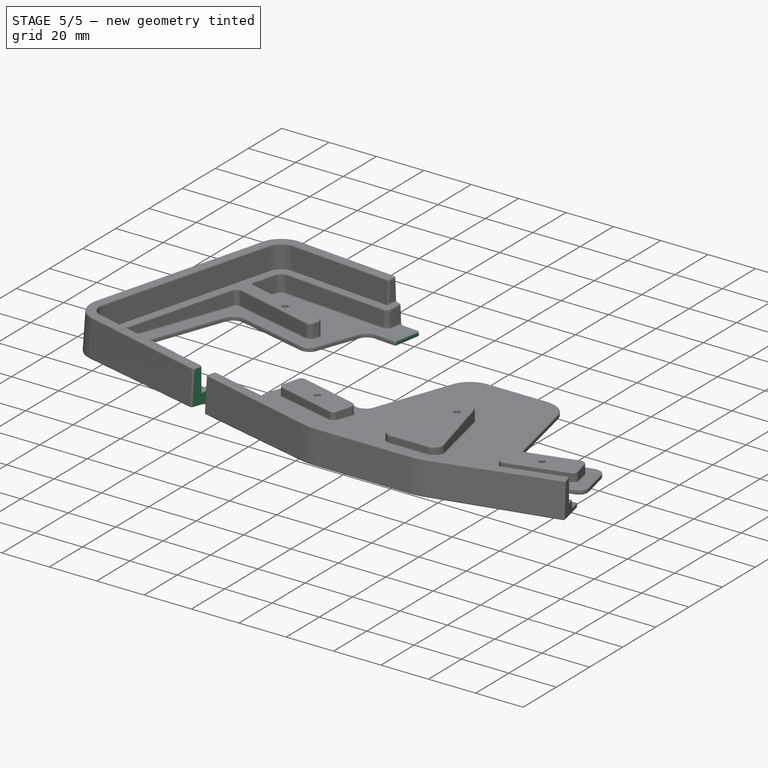
[diagram: stage 5 of 5 — iso view after this stage's code; geometry added in this stage tinted green]
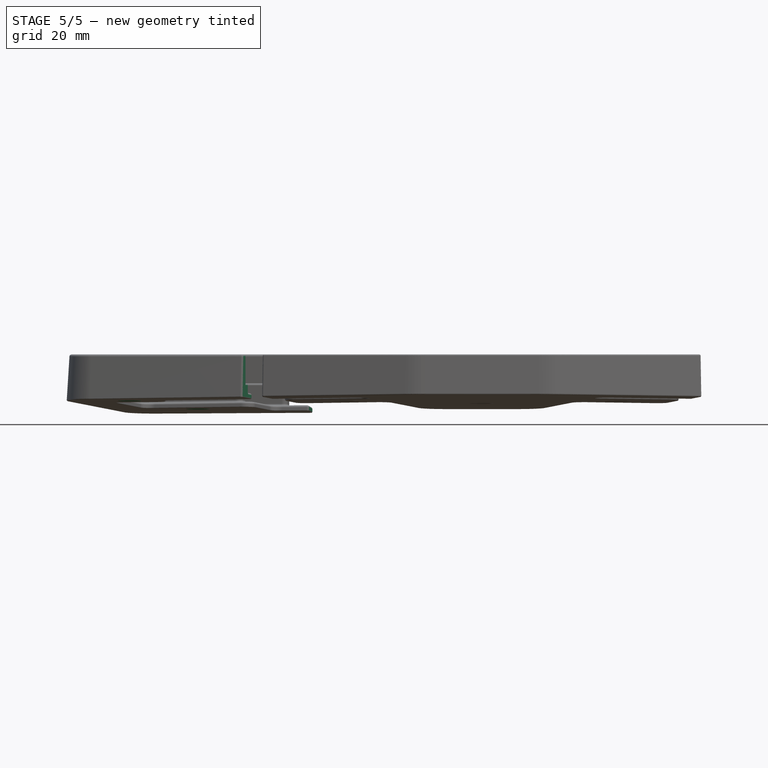
[diagram: stage 5 of 5 — front view after this stage's code; geometry added in this stage tinted green]
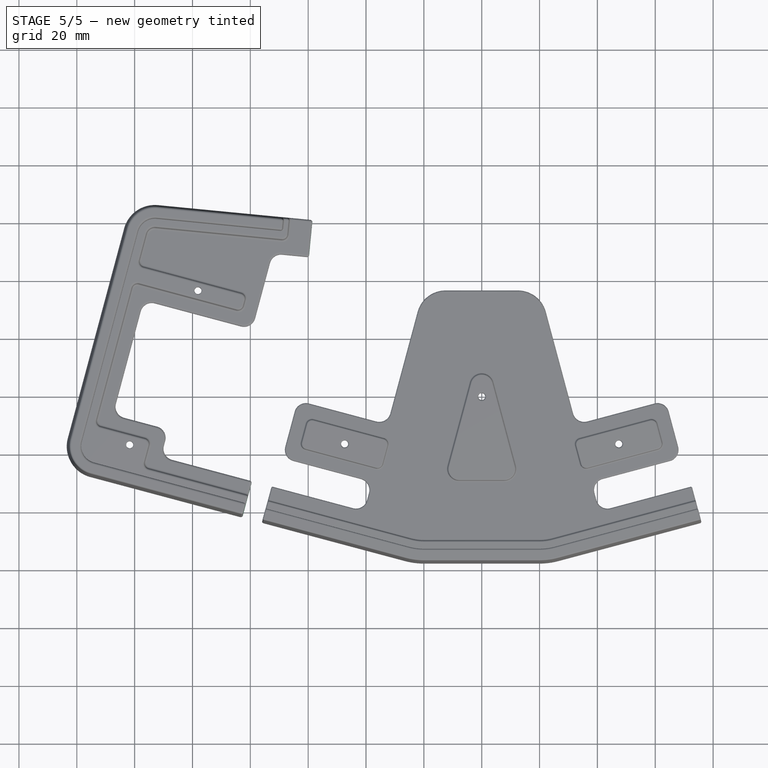
[diagram: stage 5 of 5 — top view after this stage's code; geometry added in this stage tinted green]
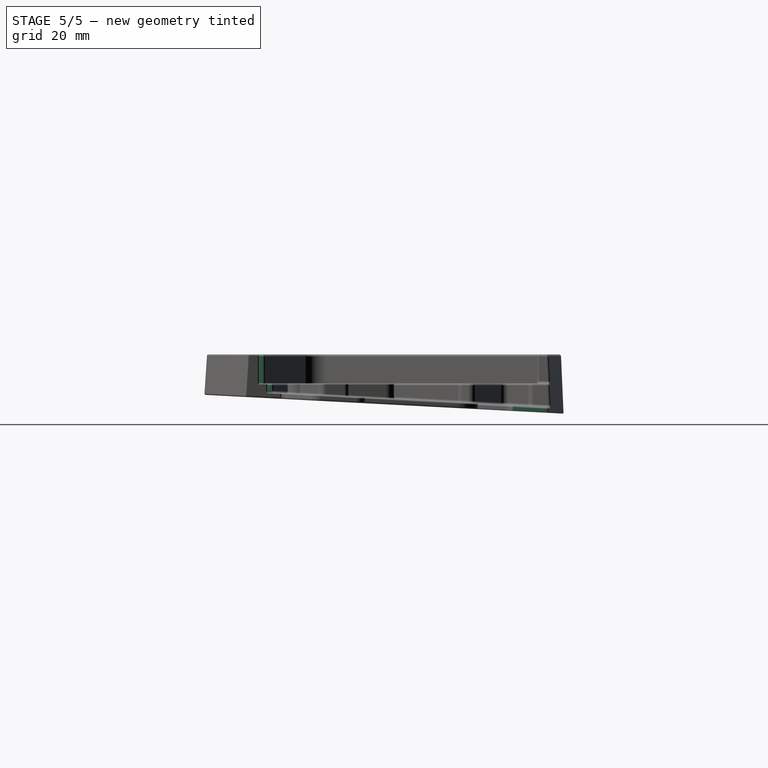
[diagram: stage 5 of 5 — right view after this stage's code; geometry added in this stage tinted green]
FEATURE [PartDesign::Chamfer] Chamfer
  Angle = 45
  Base = -> Hole [Edge73,Edge47,Edge46,Edge20,Edge45,Edge19,Edge48]
  BaseFeature = -> Hole
  ChamferType = 0
  FlipDirection = false
  Size = 3
  Size2 = 1
  SupportTransform = false
  UseAllEdges = false
FEATURE [Sketcher::SketchObject] Sketch006
  ExternalGeometry = -> [Pocket002]
  FullyConstrained = true
  MapMode = 5
  Placement = pos=(0,0,17) rot=(0,0,1;0rad)
  Support = -> [AdditiveLoft]
  sketch-geometry (5):
    g0: LineSegment StartX=-51.0759 StartY=137.692 StartZ=0 EndX=-60.3868 EndY=41.6566 EndZ=0
    g1: LineSegment StartX=-60.3868 StartY=41.6566 StartZ=0 EndX=-84.8627 EndY=-49.5637 EndZ=0
    g2: LineSegment StartX=-84.8627 StartY=-49.5637 StartZ=0 EndX=185.621 EndY=-121.94 EndZ=0
    g3: LineSegment StartX=185.621 StartY=-121.94 StartZ=0 EndX=247.528 EndY=108.781 EndZ=0
    g4: LineSegment StartX=247.528 StartY=108.781 StartZ=0 EndX=-51.0759 EndY=137.692 EndZ=0
  constraints (15):
    c: Coincident(g0,g1)
    c: Coincident(g1,g2)
    c: Coincident(g2,g3)
    c: Coincident(g3,g4)
    c: Coincident(g4,g0)
    c: Parallel(g-3,g0)
    c: Parallel(g4,g-5)
    c: Distance(g-3,g0) = 8
    c: Distance(g0,g-6) = 8
    c: Parallel(g1,g-6)
    c: Parallel(g3,g-4)
    c: Parallel(g-7,g2)
    c: Distance(g1,g-7) = 8
    c: Distance(g4) = 300
    c: Distance(g2) = 280
FEATURE [PartDesign::Pocket] Pocket003
  BaseFeature = -> Chamfer
  Direction = (0,0,-1)
  Length = 5
  Length2 = 5
  Profile = -> Sketch006
  ReferenceAxis = -> Sketch006 [N_Axis]
  Type = 1
FEATURE [PartDesign::Fillet] Fillet
  Base = -> Pocket003 [Face25,Edge118,Edge129,Edge67,Edge68,Edge107,Edge57,Edge56,Edge53,Edge55,Edge54,Edge51,Edge30,Edge24,Edge25,Edge23,Edge70,Edge69,Edge91]
  BaseFeature = -> Pocket003
  Radius = 0.75
  SupportTransform = false
  UseAllEdges = false
FEATURE [PartDesign::Fillet] Fillet001
  Base = -> Fillet [Face1,Edge165,Edge167,Edge87,Edge89]
  BaseFeature = -> Fillet
  Radius = 0.3
  SupportTransform = false
  UseAllEdges = false
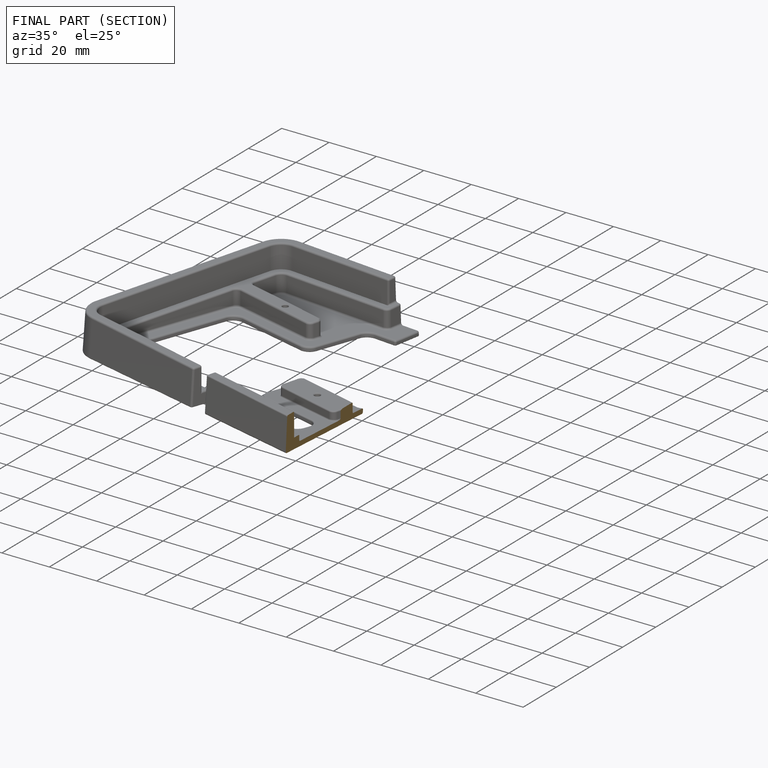
[diagram: finished part — half-section view (interior)]
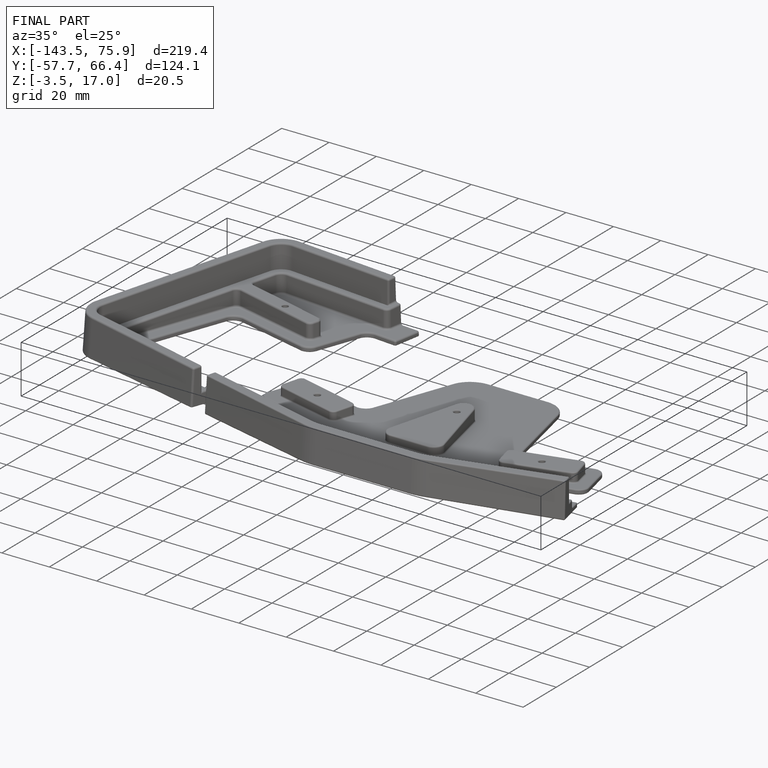
[diagram: finished part — iso view with bounding-box wireframe]
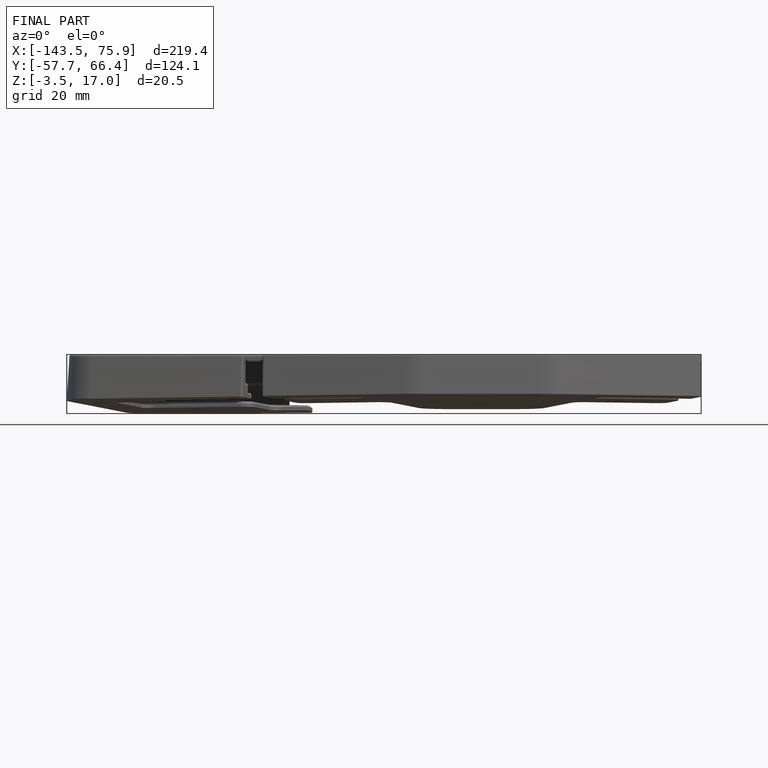
[diagram: finished part — front view with bounding-box wireframe]
